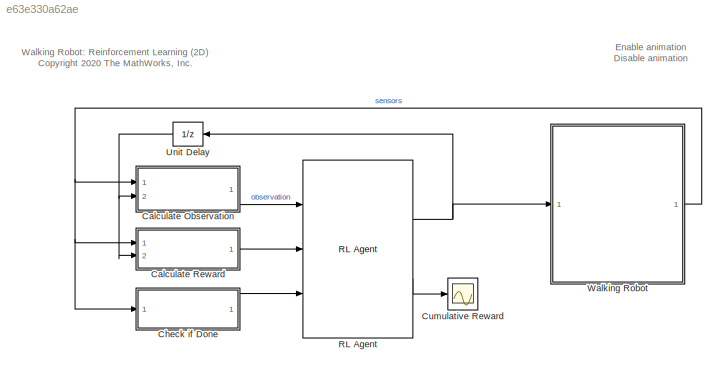
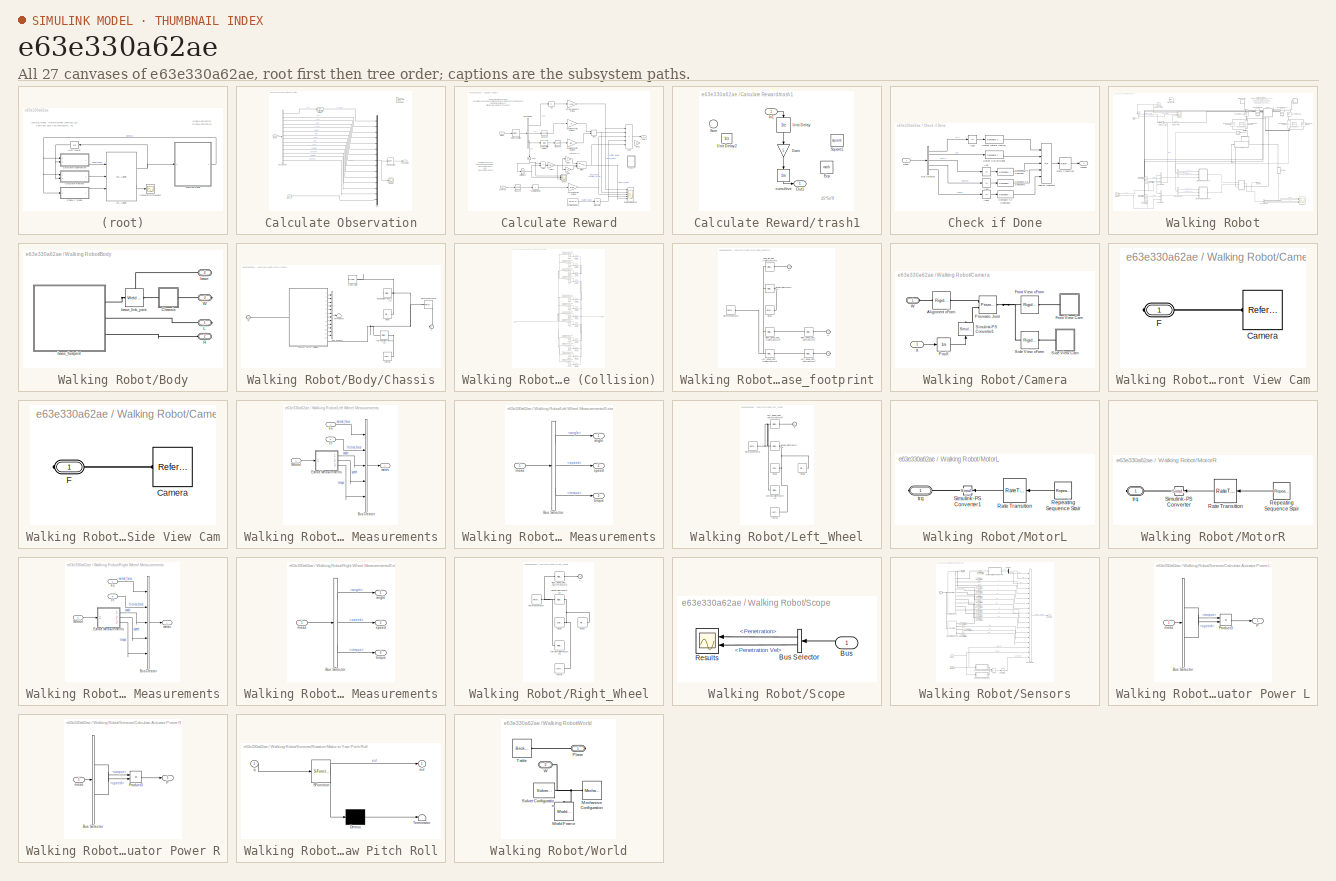
[diagram: thumbnail index - all 27 canvases of the model, root first then tree order]
MODEL slx_e63e330a62ae
KIND model
CONFIG AbsTol = auto
CONFIG EnableMultiTasking = on
CONFIG FixedStep = auto
CONFIG MaxStep = auto
CONFIG MinStep = auto
CONFIG RelTol = 1e-2
CONFIG SampleTimeConstraint = Unconstrained
CONFIG Solver = ode23t
CONFIG SolverName = ode23t
CONFIG StartTime = 0.0
CONFIG StopTime = 20
BLOCK [SubSystem] Calculate Observation
  Ports = [2, 1]
  RequestExecContextInheritance = off
BLOCK [BusSelector] Calculate Observation/Bus Selector
  OutputSignals = Z,VX,VY,VZ,yaw,pitch,roll,wx,wy,wz,measL.angle,measL.speed,measR.angle,measR.speed
  Ports = [1, 14]
BLOCK [Mux] Calculate Observation/Mux
  DisplayOption = bar
  Inputs = 15
  Ports = [15, 1]
BLOCK [RateTransition] Calculate Observation/Rate Transition
BLOCK [Gain] Calculate Observation/Scale Height
  Commented = on
  Gain = 1/0.05
BLOCK [Scope] Calculate Observation/Scope
  Floating = off
  NumInputPorts = 1
  Ports = [1]
  ScopeSpecificationString = Simulink.scopes.TimeScopeBlockCfg('CurrentConfiguration', extmgr.ConfigurationSet(extmgr.Configuration('Core','General UI',true),extmgr.Configuration('Core','Source UI',true),extmgr.Configuration('Sources','WiredSimulink',true,'DataLoggingVariableName','ScopeData1'),extmgr.Configuration('Visuals','Time Domain',true,'SerializedDisplays',{struct('MinYLimReal','-1','MaxYLimReal','1','YLabelReal','','...<+1885ch>
BLOCK [Bias] Calculate Observation/Subtract Initial Height
  Bias = -init_height
  SaturateOnIntegerOverflow = off
BLOCK [Inport] Calculate Observation/meas
BLOCK [Outport] Calculate Observation/observation
  VectorParamsAs1DForOutWhenUnconnected = off
BLOCK [Inport] Calculate Observation/prevAct
  Port = 2
BLOCK [SubSystem] Calculate Reward
  Ports = [2, 1]
  RequestExecContextInheritance = off
BLOCK [Abs] Calculate Reward/Abs
  SaturateOnIntegerOverflow = off
BLOCK [Abs] Calculate Reward/Abs1
  NameLocation = left
  SaturateOnIntegerOverflow = off
BLOCK [Sum] Calculate Reward/Add
  IconShape = rectangular
  Inputs = +-
  Ports = [2, 1]
BLOCK [Sum] Calculate Reward/Add1
  IconShape = rectangular
  Ports = [2, 1]
BLOCK [Sum] Calculate Reward/Add2
  IconShape = rectangular
  Inputs = +--++
  Ports = [5, 1]
BLOCK [BusSelector] Calculate Reward/Bus Selector
  OutputSignals = VX,Y,Z
  Ports = [1, 3]
BLOCK [Gain] Calculate Reward/Deviation Penalty Scaling Y
  Commented = on
  Gain = 3
BLOCK [Gain] Calculate Reward/Deviation Penalty Scaling Z
  Gain = 50
BLOCK [Constant] Calculate Reward/Duration Reward
  Value = 10*Ts/Tf
BLOCK [Gain] Calculate Reward/Forward Reward Scaling
  Gain = 0.05
BLOCK [Gain] Calculate Reward/Gain1
  Gain = 10
BLOCK [Gain] Calculate Reward/Gain2
  Gain = 5
BLOCK [Gain] Calculate Reward/Gain3
  Gain = 5e+1
BLOCK [Gain] Calculate Reward/Gain4
  Commented = on
  Gain = 10
BLOCK [Scope] Calculate Reward/Individual Rewards
  Floating = off
  NumInputPorts = 5
  Ports = [5]
  ScopeSpecificationString = Simulink.scopes.TimeScopeBlockCfg('CurrentConfiguration', extmgr.ConfigurationSet(extmgr.Configuration('Core','General UI',true),extmgr.Configuration('Core','Source UI',true),extmgr.Configuration('Sources','WiredSimulink',true,'DataLoggingVariableName','ScopeData1'),extmgr.Configuration('Visuals','Time Domain',true,'SerializedDisplays',{struct('MinYLimReal','-0.63415','MaxYLimReal','0.13673','YLab...<+1515ch>
BLOCK [Integrator] Calculate Reward/Integrator
  Ports = [1, 1]
BLOCK [RateTransition] Calculate Reward/Rate Transition
  OutPortSampleTime = Ts
BLOCK [Scope] Calculate Reward/Scope
  Commented = on
  Floating = off
  NumInputPorts = 3
  Ports = [3]
  ScopeSpecificationString = Simulink.scopes.TimeScopeBlockCfg('CurrentConfiguration', extmgr.ConfigurationSet(extmgr.Configuration('Core','General UI',true),extmgr.Configuration('Core','Source UI',true),extmgr.Configuration('Sources','WiredSimulink',true,'DataLoggingVariableName','ScopeData1'),extmgr.Configuration('Visuals','Time Domain',true,'SerializedDisplays',{struct('MinYLimReal','-0.31358','MaxYLimReal','0.15623','YLab...<+1525ch>
BLOCK [Math] Calculate Reward/Square2
  Operator = square
  Ports = [1, 1]
  SignedPower = on
BLOCK [Math] Calculate Reward/Square3
  Commented = on
  Operator = square
  Ports = [1, 1]
  SignedPower = on
BLOCK [Math] Calculate Reward/Square4
  Operator = square
  Ports = [1, 1]
  SignedPower = on
BLOCK [Bias] Calculate Reward/Subtract Initial Height
  Bias = -init_height
  SaturateOnIntegerOverflow = off
BLOCK [Sum] Calculate Reward/Sum of Elements
  IconShape = rectangular
  Inputs = +
  Ports = [1, 1]
BLOCK [Switch] Calculate Reward/Switch
  Criteria = u2 > Threshold
  InputSameDT = off
  SaturateOnIntegerOverflow = off
BLOCK [Gain] Calculate Reward/Torque Penalty Scaling
  Gain = 0.02
BLOCK [UnitDelay] Calculate Reward/Unit Delay1
  HasFrameUpgradeWarning = on
  InitialCondition = init_height
  SampleTime = Ts
BLOCK [Inport] Calculate Reward/meas
BLOCK [Inport] Calculate Reward/prevAct
  Port = 2
BLOCK [Outport] Calculate Reward/reward
  VectorParamsAs1DForOutWhenUnconnected = off
BLOCK [SubSystem] Calculate Reward/trash1
  Commented = on
  Ports = [1, 1]
  RequestExecContextInheritance = off
BLOCK [Math] Calculate Reward/trash1/Exp
  Commented = on
  NameLocation = left
  Ports = [1, 1]
BLOCK [Gain] Calculate Reward/trash1/Gain
  Commented = on
  Gain = 5
  NameLocation = left
BLOCK [Inport] Calculate Reward/trash1/In1
BLOCK [Outport] Calculate Reward/trash1/Out1
BLOCK [Math] Calculate Reward/trash1/Square1
  Commented = on
  NameLocation = left
  Operator = square
  Ports = [1, 1]
  SignedPower = on
BLOCK [Sum] Calculate Reward/trash1/Sum
  Commented = on
  Inputs = |++
  Ports = [2, 1]
BLOCK [UnitDelay] Calculate Reward/trash1/Unit Delay
  Commented = on
  HasFrameUpgradeWarning = on
  NameLocation = left
  SampleTime = -1
BLOCK [UnitDelay] Calculate Reward/trash1/Unit Delay2
  Commented = on
  HasFrameUpgradeWarning = on
  NameLocation = top
  SampleTime = -1
BLOCK [Integrator] Calculate Reward/trash1/cumultive
  Commented = on
  NameLocation = left
  Ports = [1, 1]
BLOCK [SubSystem] Check if Done
  Ports = [1, 1]
  RequestExecContextInheritance = off
BLOCK [Abs] Check if Done/Abs
  SaturateOnIntegerOverflow = off
BLOCK [Abs] Check if Done/Abs1
  SaturateOnIntegerOverflow = off
BLOCK [Abs] Check if Done/Abs2
  SaturateOnIntegerOverflow = off
BLOCK [Abs] Check if Done/Abs3
  Commented = on
  SaturateOnIntegerOverflow = off
BLOCK [BusSelector] Check if Done/Bus Selector
  OutputSignals = Y,Z,roll,pitch,yaw
  Ports = [1, 5]
BLOCK [Reference] Check if Done/Compare To Constant  REF=simulink/Logic and Bit
Operations/Compare
To Constant
  Ports = [1, 1]
  SourceBlock = simulink/Logic and Bit\nOperations/Compare\nTo Constant
  SourceProductBaseCode = SL
  SourceType = Compare To Constant
BLOCK [Reference] Check if Done/Compare To Constant1  REF=simulink/Logic and Bit
Operations/Compare
To Constant
  Ports = [1, 1]
  SourceBlock = simulink/Logic and Bit\nOperations/Compare\nTo Constant
  SourceProductBaseCode = SL
  SourceType = Compare To Constant
BLOCK [Reference] Check if Done/Compare To Constant2  REF=simulink/Logic and Bit
Operations/Compare
To Constant
  Ports = [1, 1]
  SourceBlock = simulink/Logic and Bit\nOperations/Compare\nTo Constant
  SourceProductBaseCode = SL
  SourceType = Compare To Constant
BLOCK [Reference] Check if Done/Detect Fallen Robot  REF=simulink/Logic and Bit
Operations/Compare
To Constant
  Ports = [1, 1]
  SourceBlock = simulink/Logic and Bit\nOperations/Compare\nTo Constant
  SourceProductBaseCode = SL
  SourceType = Compare To Constant
BLOCK [Reference] Check if Done/Detect Lateral Motion  REF=simulink/Logic and Bit
Operations/Compare
To Constant
  Commented = on
  Ports = [1, 1]
  SourceBlock = simulink/Logic and Bit\nOperations/Compare\nTo Constant
  SourceProductBaseCode = SL
  SourceType = Compare To Constant
BLOCK [Logic] Check if Done/Logical Operator
  AllPortsSameDT = off
  Inputs = 5
  Operator = OR
  OutDataTypeStr = boolean
  Ports = [5, 1]
BLOCK [RateTransition] Check if Done/Rate Transition
BLOCK [Outport] Check if Done/isdone
  VectorParamsAs1DForOutWhenUnconnected = off
BLOCK [Inport] Check if Done/meas
BLOCK [Scope] Cumulative Reward
  Floating = off
  NumInputPorts = 1
  Ports = [1]
  ScopeSpecificationString = Simulink.scopes.TimeScopeBlockCfg('CurrentConfiguration', extmgr.ConfigurationSet(extmgr.Configuration('Core','General UI',true),extmgr.Configuration('Core','Source UI',true),extmgr.Configuration('Sources','WiredSimulink',true),extmgr.Configuration('Visuals','Time Domain',true,'SerializedDisplays',{struct('MinYLimReal','-112.65012','MaxYLimReal','1013.85109','YLabelReal','','MinYLimMag',' 0.00000'...<+1402ch>
BLOCK [Reference] RL Agent  REF=rllib/RL Agent
  Ports = [3, 2]
  SourceBlock = rllib/RL Agent
  SourceProductBaseCode = RL
  SourceType = RL Agent
BLOCK [UnitDelay] Unit Delay
  HasFrameUpgradeWarning = on
  SampleTime = -1
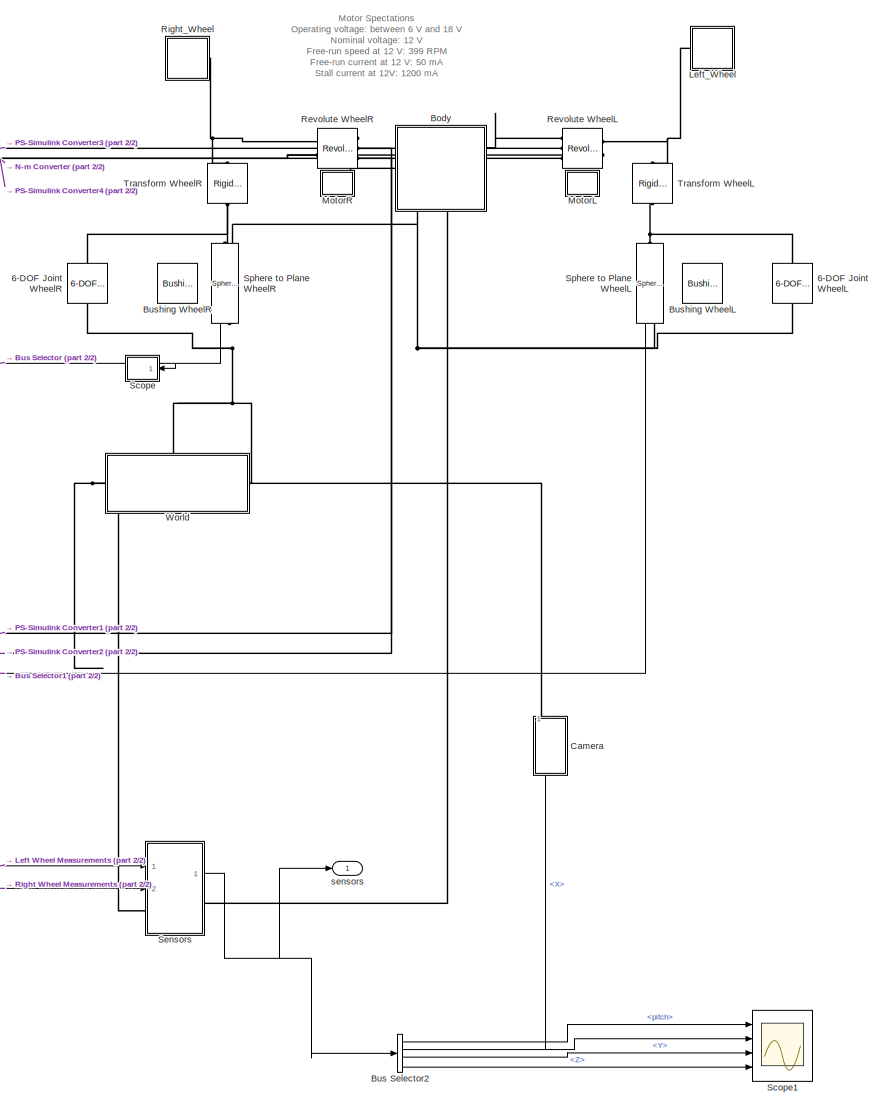
[diagram: Walking Robot - part 1/2, right side, full height]
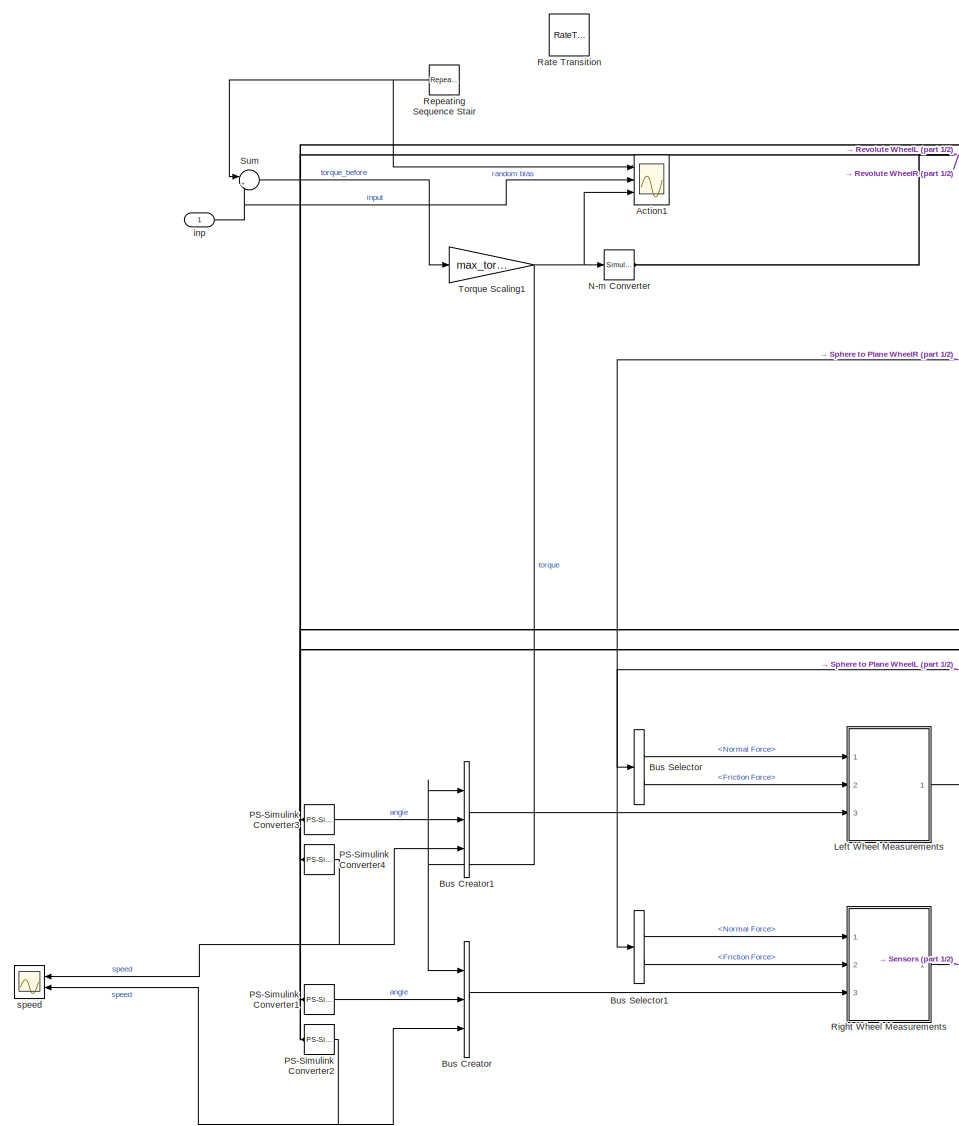
[diagram: Walking Robot - part 2/2, left side, full height]
BLOCK [SubSystem] Walking Robot
  Ports = [1, 1]
  RequestExecContextInheritance = off
BLOCK [Reference] Walking Robot/6-DOF Joint WheelL  REF=sm_lib/Joints/6-DOF Joint
  NameLocation = right
  Ports = [0, 0, 0, 0, 0, 1, 1]
  SourceBlock = sm_lib/Joints/6-DOF Joint
  SourceProductBaseCode = MS
  SourceType = 6-DOF Joint
BLOCK [Reference] Walking Robot/6-DOF Joint WheelR  REF=sm_lib/Joints/6-DOF Joint
  NameLocation = left
  Ports = [0, 0, 0, 0, 0, 1, 1]
  SourceBlock = sm_lib/Joints/6-DOF Joint
  SourceProductBaseCode = MS
  SourceType = 6-DOF Joint
BLOCK [Scope] Walking Robot/Action1
  Floating = off
  NumInputPorts = 3
  Ports = [3]
  ScopeSpecificationString = Simulink.scopes.TimeScopeBlockCfg('CurrentConfiguration', extmgr.ConfigurationSet(extmgr.Configuration('Core','General UI',true),extmgr.Configuration('Core','Source UI',true),extmgr.Configuration('Sources','WiredSimulink',true,'DataLoggingVariableName','ScopeData1'),extmgr.Configuration('Visuals','Time Domain',true,'SerializedDisplays',{struct('MinYLimReal','-0.78078','MaxYLimReal','0.98621','YLab...<+1686ch>
BLOCK [SubSystem] Walking Robot/Body
  PortSchema = {"entries":[{"content":{"sides":[{"content":{"connectorIds":["LConn1"]},"type":"ConnectorPlacement.EquallySpacedRectSide","uuid":"fa89fc61-4746-4874-a10e-0f1ff4eac7ad"},{"content":{"connectorIds":["RConn1"],"side":"RIGHT"},"type":"ConnectorPlacement.EquallySpacedRectSide","uuid":"79f4ddb8-3849-4594-b888-ec6795b585fc"},{"content":{"connectorIds":[],"side":"TOP"},"type":"ConnectorPlacement.EquallySp...<+408ch>
  Ports = [0, 0, 0, 0, 0, 1, 3]
  RequestExecContextInheritance = off
  Tag = CustomStyle
BLOCK [SubSystem] Walking Robot/Body/Chassis
  Ports = [0, 0, 0, 0, 0, 1, 1]
  RequestExecContextInheritance = off
BLOCK [Reference] Walking Robot/Body/Chassis/6-DOF Joint  REF=sm_lib/Joints/6-DOF Joint
  Ports = [0, 0, 0, 0, 0, 1, 1]
  SourceBlock = sm_lib/Joints/6-DOF Joint
  SourceProductBaseCode = MS
  SourceType = 6-DOF Joint
BLOCK [BusCreator] Walking Robot/Body/Chassis/Bus Creator
  DisplayOption = bar
  InheritFromInputs = on
  Inputs = 12
  Ports = [12, 1]
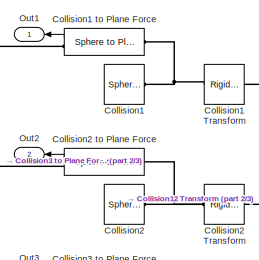
[diagram: Walking Robot/Body/Chassis/Contact Force (Collision) - part 1/3, top center region]
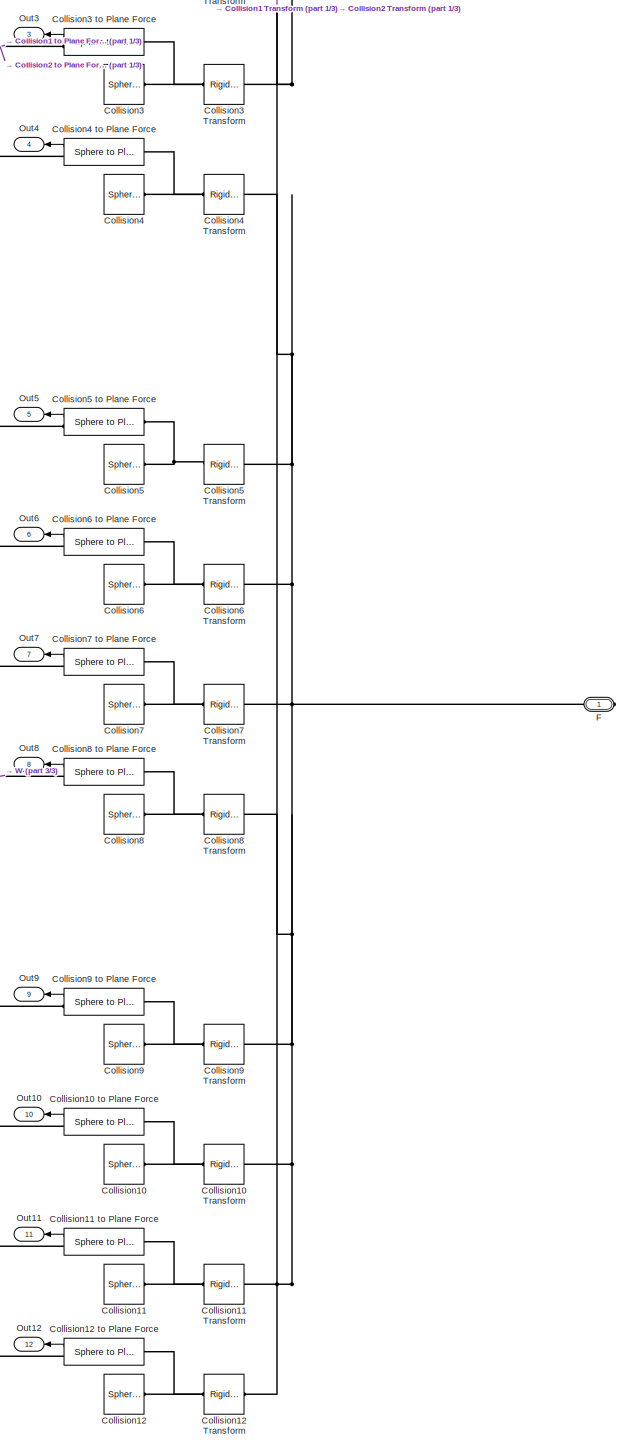
[diagram: Walking Robot/Body/Chassis/Contact Force (Collision) - part 2/3, right side, full height]
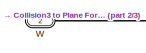
[diagram: Walking Robot/Body/Chassis/Contact Force (Collision) - part 3/3, middle left region]
BLOCK [SubSystem] Walking Robot/Body/Chassis/Contact Force (Collision)
  Ports = [0, 12, 0, 0, 0, 1, 1]
  RequestExecContextInheritance = off
BLOCK [Reference] Walking Robot/Body/Chassis/Contact Force (Collision)/Collision1  REF=sm_lib/Body Elements/Spherical Solid
  NameLocation = left
  Ports = [0, 0, 0, 0, 0, 0, 1]
  SourceBlock = sm_lib/Body Elements/Spherical Solid
  SourceProductBaseCode = MS
  SourceType = Spherical Solid
BLOCK [Reference] Walking Robot/Body/Chassis/Contact Force (Collision)/Collision1 Transform  REF=sm_lib/Frames and
Transforms/Rigid
Transform
  NameLocation = top
  Ports = [0, 0, 0, 0, 0, 1, 1]
  SourceBlock = sm_lib/Frames and\nTransforms/Rigid\nTransform
  SourceProductBaseCode = MS
  SourceType = Rigid\nTransform
BLOCK [Reference] Walking Robot/Body/Chassis/Contact Force (Collision)/Collision1 to Plane Force  REF=Contact_Forces_Lib/3D/Sphere to Plane Force
  NameLocation = left
  Ports = [0, 1, 0, 0, 0, 1, 1]
  SourceBlock = Contact_Forces_Lib/3D/Sphere to Plane Force
  SourceProductName = Simscape Multibody Contact Forces Library
  SourceType = Sphere to Plane Force
BLOCK [Reference] Walking Robot/Body/Chassis/Contact Force (Collision)/Collision10  REF=sm_lib/Body Elements/Spherical Solid
  NameLocation = left
  Ports = [0, 0, 0, 0, 0, 0, 1]
  SourceBlock = sm_lib/Body Elements/Spherical Solid
  SourceProductBaseCode = MS
  SourceType = Spherical Solid
BLOCK [Reference] Walking Robot/Body/Chassis/Contact Force (Collision)/Collision10 Transform  REF=sm_lib/Frames and
Transforms/Rigid
Transform
  NameLocation = top
  Ports = [0, 0, 0, 0, 0, 1, 1]
  SourceBlock = sm_lib/Frames and\nTransforms/Rigid\nTransform
  SourceProductBaseCode = MS
  SourceType = Rigid\nTransform
BLOCK [Reference] Walking Robot/Body/Chassis/Contact Force (Collision)/Collision10 to Plane Force  REF=Contact_Forces_Lib/3D/Sphere to Plane Force
  NameLocation = left
  Ports = [0, 1, 0, 0, 0, 1, 1]
  SourceBlock = Contact_Forces_Lib/3D/Sphere to Plane Force
  SourceProductName = Simscape Multibody Contact Forces Library
  SourceType = Sphere to Plane Force
BLOCK [Reference] Walking Robot/Body/Chassis/Contact Force (Collision)/Collision11  REF=sm_lib/Body Elements/Spherical Solid
  NameLocation = left
  Ports = [0, 0, 0, 0, 0, 0, 1]
  SourceBlock = sm_lib/Body Elements/Spherical Solid
  SourceProductBaseCode = MS
  SourceType = Spherical Solid
BLOCK [Reference] Walking Robot/Body/Chassis/Contact Force (Collision)/Collision11 Transform  REF=sm_lib/Frames and
Transforms/Rigid
Transform
  NameLocation = top
  Ports = [0, 0, 0, 0, 0, 1, 1]
  SourceBlock = sm_lib/Frames and\nTransforms/Rigid\nTransform
  SourceProductBaseCode = MS
  SourceType = Rigid\nTransform
BLOCK [Reference] Walking Robot/Body/Chassis/Contact Force (Collision)/Collision11 to Plane Force  REF=Contact_Forces_Lib/3D/Sphere to Plane Force
  NameLocation = left
  Ports = [0, 1, 0, 0, 0, 1, 1]
  SourceBlock = Contact_Forces_Lib/3D/Sphere to Plane Force
  SourceProductName = Simscape Multibody Contact Forces Library
  SourceType = Sphere to Plane Force
BLOCK [Reference] Walking Robot/Body/Chassis/Contact Force (Collision)/Collision12  REF=sm_lib/Body Elements/Spherical Solid
  NameLocation = left
  Ports = [0, 0, 0, 0, 0, 0, 1]
  SourceBlock = sm_lib/Body Elements/Spherical Solid
  SourceProductBaseCode = MS
  SourceType = Spherical Solid
BLOCK [Reference] Walking Robot/Body/Chassis/Contact Force (Collision)/Collision12 Transform  REF=sm_lib/Frames and
Transforms/Rigid
Transform
  NameLocation = top
  Ports = [0, 0, 0, 0, 0, 1, 1]
  SourceBlock = sm_lib/Frames and\nTransforms/Rigid\nTransform
  SourceProductBaseCode = MS
  SourceType = Rigid\nTransform
BLOCK [Reference] Walking Robot/Body/Chassis/Contact Force (Collision)/Collision12 to Plane Force  REF=Contact_Forces_Lib/3D/Sphere to Plane Force
  NameLocation = left
  Ports = [0, 1, 0, 0, 0, 1, 1]
  SourceBlock = Contact_Forces_Lib/3D/Sphere to Plane Force
  SourceProductName = Simscape Multibody Contact Forces Library
  SourceType = Sphere to Plane Force
BLOCK [Reference] Walking Robot/Body/Chassis/Contact Force (Collision)/Collision2  REF=sm_lib/Body Elements/Spherical Solid
  NameLocation = left
  Ports = [0, 0, 0, 0, 0, 0, 1]
  SourceBlock = sm_lib/Body Elements/Spherical Solid
  SourceProductBaseCode = MS
  SourceType = Spherical Solid
BLOCK [Reference] Walking Robot/Body/Chassis/Contact Force (Collision)/Collision2 Transform  REF=sm_lib/Frames and
Transforms/Rigid
Transform
  NameLocation = top
  Ports = [0, 0, 0, 0, 0, 1, 1]
  SourceBlock = sm_lib/Frames and\nTransforms/Rigid\nTransform
  SourceProductBaseCode = MS
  SourceType = Rigid\nTransform
BLOCK [Reference] Walking Robot/Body/Chassis/Contact Force (Collision)/Collision2 to Plane Force  REF=Contact_Forces_Lib/3D/Sphere to Plane Force
  NameLocation = left
  Ports = [0, 1, 0, 0, 0, 1, 1]
  SourceBlock = Contact_Forces_Lib/3D/Sphere to Plane Force
  SourceProductName = Simscape Multibody Contact Forces Library
  SourceType = Sphere to Plane Force
BLOCK [Reference] Walking Robot/Body/Chassis/Contact Force (Collision)/Collision3  REF=sm_lib/Body Elements/Spherical Solid
  NameLocation = left
  Ports = [0, 0, 0, 0, 0, 0, 1]
  SourceBlock = sm_lib/Body Elements/Spherical Solid
  SourceProductBaseCode = MS
  SourceType = Spherical Solid
BLOCK [Reference] Walking Robot/Body/Chassis/Contact Force (Collision)/Collision3 Transform  REF=sm_lib/Frames and
Transforms/Rigid
Transform
  NameLocation = top
  Ports = [0, 0, 0, 0, 0, 1, 1]
  SourceBlock = sm_lib/Frames and\nTransforms/Rigid\nTransform
  SourceProductBaseCode = MS
  SourceType = Rigid\nTransform
BLOCK [Reference] Walking Robot/Body/Chassis/Contact Force (Collision)/Collision3 to Plane Force  REF=Contact_Forces_Lib/3D/Sphere to Plane Force
  NameLocation = left
  Ports = [0, 1, 0, 0, 0, 1, 1]
  SourceBlock = Contact_Forces_Lib/3D/Sphere to Plane Force
  SourceProductName = Simscape Multibody Contact Forces Library
  SourceType = Sphere to Plane Force
BLOCK [Reference] Walking Robot/Body/Chassis/Contact Force (Collision)/Collision4  REF=sm_lib/Body Elements/Spherical Solid
  NameLocation = left
  Ports = [0, 0, 0, 0, 0, 0, 1]
  SourceBlock = sm_lib/Body Elements/Spherical Solid
  SourceProductBaseCode = MS
  SourceType = Spherical Solid
BLOCK [Reference] Walking Robot/Body/Chassis/Contact Force (Collision)/Collision4 Transform  REF=sm_lib/Frames and
Transforms/Rigid
Transform
  NameLocation = top
  Ports = [0, 0, 0, 0, 0, 1, 1]
  SourceBlock = sm_lib/Frames and\nTransforms/Rigid\nTransform
  SourceProductBaseCode = MS
  SourceType = Rigid\nTransform
BLOCK [Reference] Walking Robot/Body/Chassis/Contact Force (Collision)/Collision4 to Plane Force  REF=Contact_Forces_Lib/3D/Sphere to Plane Force
  NameLocation = left
  Ports = [0, 1, 0, 0, 0, 1, 1]
  SourceBlock = Contact_Forces_Lib/3D/Sphere to Plane Force
  SourceProductName = Simscape Multibody Contact Forces Library
  SourceType = Sphere to Plane Force
BLOCK [Reference] Walking Robot/Body/Chassis/Contact Force (Collision)/Collision5  REF=sm_lib/Body Elements/Spherical Solid
  NameLocation = left
  Ports = [0, 0, 0, 0, 0, 0, 1]
  SourceBlock = sm_lib/Body Elements/Spherical Solid
  SourceProductBaseCode = MS
  SourceType = Spherical Solid
BLOCK [Reference] Walking Robot/Body/Chassis/Contact Force (Collision)/Collision5 Transform  REF=sm_lib/Frames and
Transforms/Rigid
Transform
  NameLocation = top
  Ports = [0, 0, 0, 0, 0, 1, 1]
  SourceBlock = sm_lib/Frames and\nTransforms/Rigid\nTransform
  SourceProductBaseCode = MS
  SourceType = Rigid\nTransform
BLOCK [Reference] Walking Robot/Body/Chassis/Contact Force (Collision)/Collision5 to Plane Force  REF=Contact_Forces_Lib/3D/Sphere to Plane Force
  NameLocation = left
  Ports = [0, 1, 0, 0, 0, 1, 1]
  SourceBlock = Contact_Forces_Lib/3D/Sphere to Plane Force
  SourceProductName = Simscape Multibody Contact Forces Library
  SourceType = Sphere to Plane Force
BLOCK [Reference] Walking Robot/Body/Chassis/Contact Force (Collision)/Collision6  REF=sm_lib/Body Elements/Spherical Solid
  NameLocation = left
  Ports = [0, 0, 0, 0, 0, 0, 1]
  SourceBlock = sm_lib/Body Elements/Spherical Solid
  SourceProductBaseCode = MS
  SourceType = Spherical Solid
BLOCK [Reference] Walking Robot/Body/Chassis/Contact Force (Collision)/Collision6 Transform  REF=sm_lib/Frames and
Transforms/Rigid
Transform
  NameLocation = top
  Ports = [0, 0, 0, 0, 0, 1, 1]
  SourceBlock = sm_lib/Frames and\nTransforms/Rigid\nTransform
  SourceProductBaseCode = MS
  SourceType = Rigid\nTransform
BLOCK [Reference] Walking Robot/Body/Chassis/Contact Force (Collision)/Collision6 to Plane Force  REF=Contact_Forces_Lib/3D/Sphere to Plane Force
  NameLocation = left
  Ports = [0, 1, 0, 0, 0, 1, 1]
  SourceBlock = Contact_Forces_Lib/3D/Sphere to Plane Force
  SourceProductName = Simscape Multibody Contact Forces Library
  SourceType = Sphere to Plane Force
BLOCK [Reference] Walking Robot/Body/Chassis/Contact Force (Collision)/Collision7  REF=sm_lib/Body Elements/Spherical Solid
  NameLocation = left
  Ports = [0, 0, 0, 0, 0, 0, 1]
  SourceBlock = sm_lib/Body Elements/Spherical Solid
  SourceProductBaseCode = MS
  SourceType = Spherical Solid
BLOCK [Reference] Walking Robot/Body/Chassis/Contact Force (Collision)/Collision7 Transform  REF=sm_lib/Frames and
Transforms/Rigid
Transform
  NameLocation = top
  Ports = [0, 0, 0, 0, 0, 1, 1]
  SourceBlock = sm_lib/Frames and\nTransforms/Rigid\nTransform
  SourceProductBaseCode = MS
  SourceType = Rigid\nTransform
BLOCK [Reference] Walking Robot/Body/Chassis/Contact Force (Collision)/Collision7 to Plane Force  REF=Contact_Forces_Lib/3D/Sphere to Plane Force
  NameLocation = left
  Ports = [0, 1, 0, 0, 0, 1, 1]
  SourceBlock = Contact_Forces_Lib/3D/Sphere to Plane Force
  SourceProductName = Simscape Multibody Contact Forces Library
  SourceType = Sphere to Plane Force
BLOCK [Reference] Walking Robot/Body/Chassis/Contact Force (Collision)/Collision8  REF=sm_lib/Body Elements/Spherical Solid
  NameLocation = left
  Ports = [0, 0, 0, 0, 0, 0, 1]
  SourceBlock = sm_lib/Body Elements/Spherical Solid
  SourceProductBaseCode = MS
  SourceType = Spherical Solid
BLOCK [Reference] Walking Robot/Body/Chassis/Contact Force (Collision)/Collision8 Transform  REF=sm_lib/Frames and
Transforms/Rigid
Transform
  NameLocation = top
  Ports = [0, 0, 0, 0, 0, 1, 1]
  SourceBlock = sm_lib/Frames and\nTransforms/Rigid\nTransform
  SourceProductBaseCode = MS
  SourceType = Rigid\nTransform
BLOCK [Reference] Walking Robot/Body/Chassis/Contact Force (Collision)/Collision8 to Plane Force  REF=Contact_Forces_Lib/3D/Sphere to Plane Force
  NameLocation = left
  Ports = [0, 1, 0, 0, 0, 1, 1]
  SourceBlock = Contact_Forces_Lib/3D/Sphere to Plane Force
  SourceProductName = Simscape Multibody Contact Forces Library
  SourceType = Sphere to Plane Force
BLOCK [Reference] Walking Robot/Body/Chassis/Contact Force (Collision)/Collision9  REF=sm_lib/Body Elements/Spherical Solid
  NameLocation = left
  Ports = [0, 0, 0, 0, 0, 0, 1]
  SourceBlock = sm_lib/Body Elements/Spherical Solid
  SourceProductBaseCode = MS
  SourceType = Spherical Solid
BLOCK [Reference] Walking Robot/Body/Chassis/Contact Force (Collision)/Collision9 Transform  REF=sm_lib/Frames and
Transforms/Rigid
Transform
  NameLocation = top
  Ports = [0, 0, 0, 0, 0, 1, 1]
  SourceBlock = sm_lib/Frames and\nTransforms/Rigid\nTransform
  SourceProductBaseCode = MS
  SourceType = Rigid\nTransform
BLOCK [Reference] Walking Robot/Body/Chassis/Contact Force (Collision)/Collision9 to Plane Force  REF=Contact_Forces_Lib/3D/Sphere to Plane Force
  NameLocation = left
  Ports = [0, 1, 0, 0, 0, 1, 1]
  SourceBlock = Contact_Forces_Lib/3D/Sphere to Plane Force
  SourceProductName = Simscape Multibody Contact Forces Library
  SourceType = Sphere to Plane Force
BLOCK [PMIOPort] Walking Robot/Body/Chassis/Contact Force (Collision)/F
  Side = Right
BLOCK [Outport] Walking Robot/Body/Chassis/Contact Force (Collision)/Out1
BLOCK [Outport] Walking Robot/Body/Chassis/Contact Force (Collision)/Out10
  Port = 10
BLOCK [Outport] Walking Robot/Body/Chassis/Contact Force (Collision)/Out11
  Port = 11
BLOCK [Outport] Walking Robot/Body/Chassis/Contact Force (Collision)/Out12
  Port = 12
BLOCK [Outport] Walking Robot/Body/Chassis/Contact Force (Collision)/Out2
  Port = 2
BLOCK [Outport] Walking Robot/Body/Chassis/Contact Force (Collision)/Out3
  Port = 3
BLOCK [Outport] Walking Robot/Body/Chassis/Contact Force (Collision)/Out4
  Port = 4
BLOCK [Outport] Walking Robot/Body/Chassis/Contact Force (Collision)/Out5
  Port = 5
BLOCK [Outport] Walking Robot/Body/Chassis/Contact Force (Collision)/Out6
  Port = 6
BLOCK [Outport] Walking Robot/Body/Chassis/Contact Force (Collision)/Out7
  Port = 7
BLOCK [Outport] Walking Robot/Body/Chassis/Contact Force (Collision)/Out8
  Port = 8
BLOCK [Outport] Walking Robot/Body/Chassis/Contact Force (Collision)/Out9
  Port = 9
BLOCK [PMIOPort] Walking Robot/Body/Chassis/Contact Force (Collision)/W
  Port = 2
  Side = Left
BLOCK [PMIOPort] Walking Robot/Body/Chassis/F
  NameLocation = top
  Side = Left
BLOCK [Reference] Walking Robot/Body/Chassis/Inertia  REF=sm_lib/Body Elements/Inertia
  Ports = [0, 0, 0, 0, 0, 0, 1]
  SourceBlock = sm_lib/Body Elements/Inertia
  SourceProductBaseCode = MS
  SourceType = Inertia
BLOCK [Reference] Walking Robot/Body/Chassis/InertiaOriginTransform  REF=sm_lib/Frames and
Transforms/Rigid
Transform
  Ports = [0, 0, 0, 0, 0, 1, 1]
  SourceBlock = sm_lib/Frames and\nTransforms/Rigid\nTransform
  SourceProductBaseCode = MS
  SourceType = Rigid\nTransform
BLOCK [Reference] Walking Robot/Body/Chassis/ReferenceFrame  REF=sm_lib/Frames and
Transforms/Reference
Frame
  NameLocation = top
  Ports = [0, 0, 0, 0, 0, 0, 1]
  SourceBlock = sm_lib/Frames and\nTransforms/Reference\nFrame
  SourceProductBaseCode = MS
  SourceType = Reference\nFrame
BLOCK [Terminator] Walking Robot/Body/Chassis/Terminator
BLOCK [Reference] Walking Robot/Body/Chassis/Visual  REF=sm_lib/Body Elements/File Solid
  Ports = [0, 0, 0, 0, 0, 0, 1]
  SourceBlock = sm_lib/Body Elements/File Solid
  SourceProductBaseCode = MS
  SourceType = File Solid
BLOCK [Reference] Walking Robot/Body/Chassis/VisualOriginTransform  REF=sm_lib/Frames and
Transforms/Rigid
Transform
  Ports = [0, 0, 0, 0, 0, 1, 1]
  SourceBlock = sm_lib/Frames and\nTransforms/Rigid\nTransform
  SourceProductBaseCode = MS
  SourceType = Rigid\nTransform
BLOCK [PMIOPort] Walking Robot/Body/Chassis/W
  Port = 2
  Side = Right
BLOCK [PMIOPort] Walking Robot/Body/L
  NameLocation = top
  Side = Right
BLOCK [PMIOPort] Walking Robot/Body/R
  Port = 2
  Side = Left
BLOCK [PMIOPort] Walking Robot/Body/W
  Port = 3
  Side = Right
BLOCK [PMIOPort] Walking Robot/Body/base
  Port = 4
  Side = Right
BLOCK [SubSystem] Walking Robot/Body/base_footprint
  Ports = [0, 0, 0, 0, 0, 0, 3]
  RequestExecContextInheritance = off
BLOCK [PMIOPort] Walking Robot/Body/base_footprint/C
  Side = Right
BLOCK [PMIOPort] Walking Robot/Body/base_footprint/L
  Port = 3
  Side = Right
BLOCK [Reference] Walking Robot/Body/base_footprint/Left_wheel_Joint_AxisTransform  REF=sm_lib/Frames and
Transforms/Rigid
Transform
  Ports = [0, 0, 0, 0, 0, 1, 1]
  SourceBlock = sm_lib/Frames and\nTransforms/Rigid\nTransform
  SourceProductBaseCode = MS
  SourceType = Rigid\nTransform
BLOCK [Reference] Walking Robot/Body/base_footprint/Left_wheel_Joint_OriginTransform  REF=sm_lib/Frames and
Transforms/Rigid
Transform
  Ports = [0, 0, 0, 0, 0, 1, 1]
  SourceBlock = sm_lib/Frames and\nTransforms/Rigid\nTransform
  SourceProductBaseCode = MS
  SourceType = Rigid\nTransform
BLOCK [PMIOPort] Walking Robot/Body/base_footprint/R
  Port = 2
  Side = Right
BLOCK [Reference] Walking Robot/Body/base_footprint/ReferenceFrame  REF=sm_lib/Frames and
Transforms/Reference
Frame
  Ports = [0, 0, 0, 0, 0, 0, 1]
  SourceBlock = sm_lib/Frames and\nTransforms/Reference\nFrame
  SourceProductBaseCode = MS
  SourceType = Reference\nFrame
BLOCK [Reference] Walking Robot/Body/base_footprint/Right_wheel_Joint_AxisTransform  REF=sm_lib/Frames and
Transforms/Rigid
Transform
  Ports = [0, 0, 0, 0, 0, 1, 1]
  SourceBlock = sm_lib/Frames and\nTransforms/Rigid\nTransform
  SourceProductBaseCode = MS
  SourceType = Rigid\nTransform
BLOCK [Reference] Walking Robot/Body/base_footprint/Right_wheel_Joint_OriginTransform  REF=sm_lib/Frames and
Transforms/Rigid
Transform
  Ports = [0, 0, 0, 0, 0, 1, 1]
  SourceBlock = sm_lib/Frames and\nTransforms/Rigid\nTransform
  SourceProductBaseCode = MS
  SourceType = Rigid\nTransform
BLOCK [Reference] Walking Robot/Body/base_footprint/Visual  REF=sm_lib/Body Elements/Brick Solid
  Ports = [0, 0, 0, 0, 0, 0, 1]
  SourceBlock = sm_lib/Body Elements/Brick Solid
  SourceProductBaseCode = MS
  SourceType = Brick Solid
BLOCK [Reference] Walking Robot/Body/base_footprint/VisualOriginTransform  REF=sm_lib/Frames and
Transforms/Rigid
Transform
  Ports = [0, 0, 0, 0, 0, 1, 1]
  SourceBlock = sm_lib/Frames and\nTransforms/Rigid\nTransform
  SourceProductBaseCode = MS
  SourceType = Rigid\nTransform
BLOCK [Reference] Walking Robot/Body/base_footprint/base_link_joint_OriginTransform  REF=sm_lib/Frames and
Transforms/Rigid
Transform
  Ports = [0, 0, 0, 0, 0, 1, 1]
  SourceBlock = sm_lib/Frames and\nTransforms/Rigid\nTransform
  SourceProductBaseCode = MS
  SourceType = Rigid\nTransform
BLOCK [Reference] Walking Robot/Body/base_link_joint  REF=sm_lib/Joints/Weld Joint
  Ports = [0, 0, 0, 0, 0, 1, 1]
  SourceBlock = sm_lib/Joints/Weld Joint
  SourceProductBaseCode = MS
  SourceType = Weld Joint
BLOCK [BusCreator] Walking Robot/Bus Creator
  DisplayOption = bar
  InheritFromInputs = on
  Inputs = 3
  Ports = [3, 1]
BLOCK [BusCreator] Walking Robot/Bus Creator1
  DisplayOption = bar
  InheritFromInputs = on
  Inputs = 3
  Ports = [3, 1]
BLOCK [BusSelector] Walking Robot/Bus Selector
  OutputSignals = Normal Force,Friction Force
  Ports = [1, 2]
BLOCK [BusSelector] Walking Robot/Bus Selector1
  OutputSignals = Normal Force,Friction Force
  Ports = [1, 2]
BLOCK [BusSelector] Walking Robot/Bus Selector2
  OutputSignals = pitch,X,Y,Z
  Ports = [1, 4]
BLOCK [Reference] Walking Robot/Bushing WheelL  REF=sm_lib/Joints/Bushing Joint
  Commented = on
  NameLocation = right
  Ports = [0, 0, 0, 0, 0, 1, 1]
  SourceBlock = sm_lib/Joints/Bushing Joint
  SourceProductBaseCode = MS
  SourceType = Bushing Joint
BLOCK [Reference] Walking Robot/Bushing WheelR  REF=sm_lib/Joints/Bushing Joint
  Commented = on
  NameLocation = left
  Ports = [0, 0, 0, 0, 0, 1, 1]
  SourceBlock = sm_lib/Joints/Bushing Joint
  SourceProductBaseCode = MS
  SourceType = Bushing Joint
BLOCK [SubSystem] Walking Robot/Camera
  NameLocation = left
  PortSchema = {"entries":[{"content":{"sides":[{"content":{"connectorIds":["LConn1"]},"type":"ConnectorPlacement.EquallySpacedRectSide","uuid":"5dd6ba45-4949-437e-8c5e-43dcd5e686b4"},{"content":{"connectorIds":["In1"],"side":"RIGHT"},"type":"ConnectorPlacement.EquallySpacedRectSide","uuid":"c228f6bd-c24f-413c-af3b-a3573d3a4749"},{"content":{"connectorIds":[],"side":"TOP"},"type":"ConnectorPlacement.EquallySpace...<+244ch>
  Ports = [1, 0, 0, 0, 0, 1]
  RequestExecContextInheritance = off
BLOCK [Reference] Walking Robot/Camera/Alignment xForm  REF=sm_lib/Frames and
Transforms/Rigid
Transform
  Ports = [0, 0, 0, 0, 0, 1, 1]
  SourceBlock = sm_lib/Frames and\nTransforms/Rigid\nTransform
  SourceProductBaseCode = MS
  SourceType = Rigid\nTransform
BLOCK [SubSystem] Walking Robot/Camera/Front View Cam
  Ports = [0, 0, 0, 0, 0, 0, 1]
  RequestExecContextInheritance = off
BLOCK [Reference] Walking Robot/Camera/Front View Cam/Camera  REF=sm_lib/Frames and
Transforms/Reference
Frame
  Ports = [0, 0, 0, 0, 0, 0, 1]
  SourceBlock = sm_lib/Frames and\nTransforms/Reference\nFrame
  SourceProductBaseCode = MS
  SourceType = Reference\nFrame
BLOCK [PMIOPort] Walking Robot/Camera/Front View Cam/F
  Side = Right
BLOCK [Reference] Walking Robot/Camera/Front View xForm  REF=sm_lib/Frames and
Transforms/Rigid
Transform
  Ports = [0, 0, 0, 0, 0, 1, 1]
  SourceBlock = sm_lib/Frames and\nTransforms/Rigid\nTransform
  SourceProductBaseCode = MS
  SourceType = Rigid\nTransform
BLOCK [Integrator] Walking Robot/Camera/PosX
  InitialCondition = 0.3
  Ports = [1, 1]
BLOCK [Reference] Walking Robot/Camera/Prismatic Joint  REF=sm_lib/Joints/Prismatic
Joint
  Ports = [0, 0, 0, 0, 0, 2, 1]
  SourceBlock = sm_lib/Joints/Prismatic\nJoint
  SourceProductBaseCode = MS
  SourceType = Prismatic\nJoint
BLOCK [SubSystem] Walking Robot/Camera/Side View Cam
  Ports = [0, 0, 0, 0, 0, 0, 1]
  RequestExecContextInheritance = off
BLOCK [Reference] Walking Robot/Camera/Side View Cam/Camera  REF=sm_lib/Frames and
Transforms/Reference
Frame
  Ports = [0, 0, 0, 0, 0, 0, 1]
  SourceBlock = sm_lib/Frames and\nTransforms/Reference\nFrame
  SourceProductBaseCode = MS
  SourceType = Reference\nFrame
BLOCK [PMIOPort] Walking Robot/Camera/Side View Cam/F
  Side = Right
BLOCK [Reference] Walking Robot/Camera/Side View xForm  REF=sm_lib/Frames and
Transforms/Rigid
Transform
  Ports = [0, 0, 0, 0, 0, 1, 1]
  SourceBlock = sm_lib/Frames and\nTransforms/Rigid\nTransform
  SourceProductBaseCode = MS
  SourceType = Rigid\nTransform
BLOCK [Reference] Walking Robot/Camera/Simulink-PS Converter1  REF=nesl_utility/Simulink-PS
Converter
  NameLocation = right
  Ports = [1, 0, 0, 0, 0, 0, 1]
  SourceBlock = nesl_utility/Simulink-PS\nConverter
  SourceProductBaseCode = SS
  SourceType = Simulink-PS\nConverter
BLOCK [PMIOPort] Walking Robot/Camera/W
  Side = Left
BLOCK [Inport] Walking Robot/Camera/X
BLOCK [SubSystem] Walking Robot/Left Wheel Measurements
  AncestorBlock = walkingRobotUtils/Package \nMeasurements 2D
  Ports = [3, 1]
  RequestExecContextInheritance = off
BLOCK [BusCreator] Walking Robot/Left Wheel Measurements/Bus Creator
  DisplayOption = bar
  InheritFromInputs = on
  Inputs = 5
  Ports = [5, 1]
BLOCK [SubSystem] Walking Robot/Left Wheel Measurements/Extract Measurements
  Ports = [1, 3]
  RequestExecContextInheritance = off
BLOCK [BusSelector] Walking Robot/Left Wheel Measurements/Extract Measurements/Bus Selector
  OutputSignals = angle,speed,torque
  Ports = [1, 3]
BLOCK [Outport] Walking Robot/Left Wheel Measurements/Extract Measurements/angle
  VectorParamsAs1DForOutWhenUnconnected = off
BLOCK [Inport] Walking Robot/Left Wheel Measurements/Extract Measurements/meas
BLOCK [Outport] Walking Robot/Left Wheel Measurements/Extract Measurements/speed
  Port = 2
  VectorParamsAs1DForOutWhenUnconnected = off
BLOCK [Outport] Walking Robot/Left Wheel Measurements/Extract Measurements/torque
  Port = 3
  VectorParamsAs1DForOutWhenUnconnected = off
BLOCK [Inport] Walking Robot/Left Wheel Measurements/Ff
  Port = 2
BLOCK [Inport] Walking Robot/Left Wheel Measurements/Fn
BLOCK [Inport] Walking Robot/Left Wheel Measurements/Wheel
  Port = 3
BLOCK [Outport] Walking Robot/Left Wheel Measurements/meas
  VectorParamsAs1DForOutWhenUnconnected = off
BLOCK [SubSystem] Walking Robot/Left_Wheel
  Ports = [0, 0, 0, 0, 0, 1]
  RequestExecContextInheritance = off
BLOCK [PMIOPort] Walking Robot/Left_Wheel/F
  Side = Left
BLOCK [Reference] Walking Robot/Left_Wheel/Inertia  REF=sm_lib/Body Elements/Inertia
  Ports = [0, 0, 0, 0, 0, 0, 1]
  SourceBlock = sm_lib/Body Elements/Inertia
  SourceProductBaseCode = MS
  SourceType = Inertia
BLOCK [Reference] Walking Robot/Left_Wheel/InertiaOriginTransform  REF=sm_lib/Frames and
Transforms/Rigid
Transform
  Commented = on
  Ports = [0, 0, 0, 0, 0, 1, 1]
  SourceBlock = sm_lib/Frames and\nTransforms/Rigid\nTransform
  SourceProductBaseCode = MS
  SourceType = Rigid\nTransform
BLOCK [Reference] Walking Robot/Left_Wheel/Left_wheel_Joint_AxisInvTransform  REF=sm_lib/Frames and
Transforms/Rigid
Transform
  Ports = [0, 0, 0, 0, 0, 1, 1]
  SourceBlock = sm_lib/Frames and\nTransforms/Rigid\nTransform
  SourceProductBaseCode = MS
  SourceType = Rigid\nTransform
BLOCK [Reference] Walking Robot/Left_Wheel/ReferenceFrame  REF=sm_lib/Frames and
Transforms/Reference
Frame
  Ports = [0, 0, 0, 0, 0, 0, 1]
  SourceBlock = sm_lib/Frames and\nTransforms/Reference\nFrame
  SourceProductBaseCode = MS
  SourceType = Reference\nFrame
BLOCK [Reference] Walking Robot/Left_Wheel/Visual  REF=sm_lib/Body Elements/Cylindrical Solid
  Ports = [0, 0, 0, 0, 0, 0, 1]
  SourceBlock = sm_lib/Body Elements/Cylindrical Solid
  SourceProductBaseCode = MS
  SourceType = Cylindrical Solid
BLOCK [Reference] Walking Robot/Left_Wheel/Visual1  REF=sm_lib/Body Elements/File Solid
  Commented = on
  Ports = [0, 0, 0, 0, 0, 0, 1]
  SourceBlock = sm_lib/Body Elements/File Solid
  SourceProductBaseCode = MS
  SourceType = File Solid
BLOCK [Reference] Walking Robot/Left_Wheel/VisualOriginTransform  REF=sm_lib/Frames and
Transforms/Rigid
Transform
  Ports = [0, 0, 0, 0, 0, 1, 1]
  SourceBlock = sm_lib/Frames and\nTransforms/Rigid\nTransform
  SourceProductBaseCode = MS
  SourceType = Rigid\nTransform
BLOCK [SubSystem] Walking Robot/MotorL
  Commented = on
  Ports = [0, 0, 0, 0, 0, 0, 1]
  RequestExecContextInheritance = off
BLOCK [RateTransition] Walking Robot/MotorL/Rate Transition
BLOCK [Reference] Walking Robot/MotorL/Repeating Sequence Stair  REF=simulink/Sources/Repeating
Sequence
Stair
  Ports = [0, 1]
  SourceBlock = simulink/Sources/Repeating\nSequence\nStair
  SourceProductBaseCode = SL
  SourceType = Repeating Sequence Stair
BLOCK [Reference] Walking Robot/MotorL/Simulink-PS Converter1  REF=nesl_utility/Simulink-PS
Converter
  Ports = [1, 0, 0, 0, 0, 0, 1]
  SourceBlock = nesl_utility/Simulink-PS\nConverter
  SourceProductBaseCode = SS
  SourceType = Simulink-PS\nConverter
BLOCK [PMIOPort] Walking Robot/MotorL/trq
  NameLocation = top
  Side = Right
BLOCK [SubSystem] Walking Robot/MotorR
  Commented = on
  Ports = [0, 0, 0, 0, 0, 0, 1]
  RequestExecContextInheritance = off
BLOCK [RateTransition] Walking Robot/MotorR/Rate Transition
BLOCK [Reference] Walking Robot/MotorR/Repeating Sequence Stair  REF=simulink/Sources/Repeating
Sequence
Stair
  Ports = [0, 1]
  SourceBlock = simulink/Sources/Repeating\nSequence\nStair
  SourceProductBaseCode = SL
  SourceType = Repeating Sequence Stair
BLOCK [Reference] Walking Robot/MotorR/Simulink-PS Converter  REF=nesl_utility/Simulink-PS
Converter
  Ports = [1, 0, 0, 0, 0, 0, 1]
  SourceBlock = nesl_utility/Simulink-PS\nConverter
  SourceProductBaseCode = SS
  SourceType = Simulink-PS\nConverter
BLOCK [PMIOPort] Walking Robot/MotorR/trq
  NameLocation = top
  Side = Right
BLOCK [Reference] Walking Robot/N-m Converter  REF=nesl_utility/Simulink-PS
Converter
  Ports = [1, 0, 0, 0, 0, 0, 1]
  SourceBlock = nesl_utility/Simulink-PS\nConverter
  SourceProductBaseCode = MT,SS
  SourceType = Simulink-PS\nConverter
BLOCK [Reference] Walking Robot/PS-Simulink Converter1  REF=nesl_utility/PS-Simulink
Converter
  Ports = [0, 1, 0, 0, 0, 1]
  SourceBlock = nesl_utility/PS-Simulink\nConverter
  SourceProductBaseCode = MT,SS
  SourceType = PS-Simulink\nConverter
BLOCK [Reference] Walking Robot/PS-Simulink Converter2  REF=nesl_utility/PS-Simulink
Converter
  Ports = [0, 1, 0, 0, 0, 1]
  SourceBlock = nesl_utility/PS-Simulink\nConverter
  SourceProductBaseCode = MT,SS
  SourceType = PS-Simulink\nConverter
BLOCK [Reference] Walking Robot/PS-Simulink Converter3  REF=nesl_utility/PS-Simulink
Converter
  Ports = [0, 1, 0, 0, 0, 1]
  SourceBlock = nesl_utility/PS-Simulink\nConverter
  SourceProductBaseCode = MT,SS
  SourceType = PS-Simulink\nConverter
BLOCK [Reference] Walking Robot/PS-Simulink Converter4  REF=nesl_utility/PS-Simulink
Converter
  Ports = [0, 1, 0, 0, 0, 1]
  SourceBlock = nesl_utility/PS-Simulink\nConverter
  SourceProductBaseCode = MT,SS
  SourceType = PS-Simulink\nConverter
BLOCK [RateTransition] Walking Robot/Rate Transition
  Commented = on
BLOCK [Reference] Walking Robot/Repeating Sequence Stair  REF=simulink/Sources/Repeating
Sequence
Stair
  Commented = on
  Ports = [0, 1]
  SourceBlock = simulink/Sources/Repeating\nSequence\nStair
  SourceProductBaseCode = SL
  SourceType = Repeating Sequence Stair
BLOCK [Reference] Walking Robot/Revolute WheelL  REF=sm_lib/Joints/Revolute Joint
  NameLocation = top
  Ports = [0, 0, 0, 0, 0, 2, 3]
  SourceBlock = sm_lib/Joints/Revolute Joint
  SourceProductBaseCode = MS
  SourceType = Revolute Joint
BLOCK [Reference] Walking Robot/Revolute WheelR  REF=sm_lib/Joints/Revolute Joint
  NameLocation = top
  Ports = [0, 0, 0, 0, 0, 2, 3]
  SourceBlock = sm_lib/Joints/Revolute Joint
  SourceProductBaseCode = MS
  SourceType = Revolute Joint
BLOCK [SubSystem] Walking Robot/Right Wheel Measurements
  AncestorBlock = walkingRobotUtils/Package \nMeasurements 2D
  Ports = [3, 1]
  RequestExecContextInheritance = off
BLOCK [BusCreator] Walking Robot/Right Wheel Measurements/Bus Creator
  DisplayOption = bar
  InheritFromInputs = on
  Inputs = 5
  Ports = [5, 1]
BLOCK [SubSystem] Walking Robot/Right Wheel Measurements/Extract Measurements
  Ports = [1, 3]
  RequestExecContextInheritance = off
BLOCK [BusSelector] Walking Robot/Right Wheel Measurements/Extract Measurements/Bus Selector
  OutputSignals = angle,speed,torque
  Ports = [1, 3]
BLOCK [Outport] Walking Robot/Right Wheel Measurements/Extract Measurements/angle
  VectorParamsAs1DForOutWhenUnconnected = off
BLOCK [Inport] Walking Robot/Right Wheel Measurements/Extract Measurements/meas
BLOCK [Outport] Walking Robot/Right Wheel Measurements/Extract Measurements/speed
  Port = 2
  VectorParamsAs1DForOutWhenUnconnected = off
BLOCK [Outport] Walking Robot/Right Wheel Measurements/Extract Measurements/torque
  Port = 3
  VectorParamsAs1DForOutWhenUnconnected = off
BLOCK [Inport] Walking Robot/Right Wheel Measurements/Ff
  Port = 2
BLOCK [Inport] Walking Robot/Right Wheel Measurements/Fn
BLOCK [Inport] Walking Robot/Right Wheel Measurements/Wheel
  Port = 3
BLOCK [Outport] Walking Robot/Right Wheel Measurements/meas
  VectorParamsAs1DForOutWhenUnconnected = off
BLOCK [SubSystem] Walking Robot/Right_Wheel
  NameLocation = top
  Ports = [0, 0, 0, 0, 0, 1]
  RequestExecContextInheritance = off
BLOCK [PMIOPort] Walking Robot/Right_Wheel/F
  Side = Left
BLOCK [Reference] Walking Robot/Right_Wheel/Inertia  REF=sm_lib/Body Elements/Inertia
  Ports = [0, 0, 0, 0, 0, 0, 1]
  SourceBlock = sm_lib/Body Elements/Inertia
  SourceProductBaseCode = MS
  SourceType = Inertia
BLOCK [Reference] Walking Robot/Right_Wheel/InertiaOriginTransform  REF=sm_lib/Frames and
Transforms/Rigid
Transform
  Commented = on
  Ports = [0, 0, 0, 0, 0, 1, 1]
  SourceBlock = sm_lib/Frames and\nTransforms/Rigid\nTransform
  SourceProductBaseCode = MS
  SourceType = Rigid\nTransform
BLOCK [Reference] Walking Robot/Right_Wheel/ReferenceFrame  REF=sm_lib/Frames and
Transforms/Reference
Frame
  Ports = [0, 0, 0, 0, 0, 0, 1]
  SourceBlock = sm_lib/Frames and\nTransforms/Reference\nFrame
  SourceProductBaseCode = MS
  SourceType = Reference\nFrame
BLOCK [Reference] Walking Robot/Right_Wheel/Right_wheel_Joint_AxisInvTransform  REF=sm_lib/Frames and
Transforms/Rigid
Transform
  Ports = [0, 0, 0, 0, 0, 1, 1]
  SourceBlock = sm_lib/Frames and\nTransforms/Rigid\nTransform
  SourceProductBaseCode = MS
  SourceType = Rigid\nTransform
BLOCK [Reference] Walking Robot/Right_Wheel/Visual  REF=sm_lib/Body Elements/Cylindrical Solid
  Ports = [0, 0, 0, 0, 0, 0, 1]
  SourceBlock = sm_lib/Body Elements/Cylindrical Solid
  SourceProductBaseCode = MS
  SourceType = Cylindrical Solid
BLOCK [Reference] Walking Robot/Right_Wheel/Visual1  REF=sm_lib/Body Elements/File Solid
  Commented = on
  Ports = [0, 0, 0, 0, 0, 0, 1]
  SourceBlock = sm_lib/Body Elements/File Solid
  SourceProductBaseCode = MS
  SourceType = File Solid
BLOCK [Reference] Walking Robot/Right_Wheel/VisualOriginTransform  REF=sm_lib/Frames and
Transforms/Rigid
Transform
  Ports = [0, 0, 0, 0, 0, 1, 1]
  SourceBlock = sm_lib/Frames and\nTransforms/Rigid\nTransform
  SourceProductBaseCode = MS
  SourceType = Rigid\nTransform
BLOCK [SubSystem] Walking Robot/Scope
  Ports = [1]
  RequestExecContextInheritance = off
BLOCK [Inport] Walking Robot/Scope/Bus
BLOCK [BusSelector] Walking Robot/Scope/Bus Selector
  NameLocation = top
  OutputSignals = Penetration,Penetration Vel
  Ports = [1, 2]
BLOCK [Scope] Walking Robot/Scope/Results
  Floating = off
  NameLocation = top
  NumInputPorts = 2
  Ports = [2]
  ScopeSpecificationString = C++SS(StrPVP('Location','[705, 570, 1029, 907]'),StrPVP('Open','off'),StrPVP('ZoomMode','yonly'),MxPVP('AxesTitles',54,'struct(''axes1'',''%<SignalLabel>'',''axes2'',''%<SignalLabel>'')'),MxPVP('ScopeGraphics',57,'struct(''FigureColor'',''[0.501960784313725 0.501960784313725 0.501960784313725]'',''AxesColor'',''[0 0 0]'',''AxesTickColor'',''[1 1 1]'',''LineColors'',''[1 1 0;1 0 1;0 1 1;1 0 0;0 1 0...<+422ch>
  Tag = PublishScope
BLOCK [Scope] Walking Robot/Scope1
  Floating = off
  NumInputPorts = 4
  Ports = [4]
  ScopeSpecificationString = Simulink.scopes.TimeScopeBlockCfg('CurrentConfiguration', extmgr.ConfigurationSet(extmgr.Configuration('Core','General UI',true),extmgr.Configuration('Core','Source UI',true),extmgr.Configuration('Sources','WiredSimulink',true,'DataLoggingVariableName','ScopeData1'),extmgr.Configuration('Visuals','Time Domain',true,'SerializedDisplays',{struct('MinYLimReal','-0.11582','MaxYLimReal','0.88627','YLab...<+1573ch>
BLOCK [SubSystem] Walking Robot/Sensors
  Ports = [2, 1, 0, 0, 0, 1, 1]
  RequestExecContextInheritance = off
BLOCK [Sum] Walking Robot/Sensors/Add3
  IconShape = rectangular
  Ports = [2, 1]
BLOCK [PMIOPort] Walking Robot/Sensors/B
  Side = Left
BLOCK [BusCreator] Walking Robot/Sensors/Bus Creator
  DisplayOption = bar
  InheritFromInputs = on
  Inputs = 18
  Ports = [18, 1]
BLOCK [SubSystem] Walking Robot/Sensors/Calculate Actuator Power L
  Ports = [1, 1]
  RequestExecContextInheritance = off
BLOCK [BusSelector] Walking Robot/Sensors/Calculate Actuator Power L/Bus Selector
  OutputSignals = torque,speed
  Ports = [1, 2]
BLOCK [Outport] Walking Robot/Sensors/Calculate Actuator Power L/P
  VectorParamsAs1DForOutWhenUnconnected = off
BLOCK [Product] Walking Robot/Sensors/Calculate Actuator Power L/Product3
  Ports = [2, 1]
BLOCK [Inport] Walking Robot/Sensors/Calculate Actuator Power L/meas
BLOCK [SubSystem] Walking Robot/Sensors/Calculate Actuator Power R
  Ports = [1, 1]
  RequestExecContextInheritance = off
BLOCK [BusSelector] Walking Robot/Sensors/Calculate Actuator Power R/Bus Selector
  OutputSignals = torque,speed
  Ports = [1, 2]
BLOCK [Outport] Walking Robot/Sensors/Calculate Actuator Power R/P
  VectorParamsAs1DForOutWhenUnconnected = off
BLOCK [Product] Walking Robot/Sensors/Calculate Actuator Power R/Product3
  Ports = [2, 1]
BLOCK [Inport] Walking Robot/Sensors/Calculate Actuator Power R/meas
BLOCK [Demux] Walking Robot/Sensors/Demux
  Outputs = 3
  Ports = [1, 3]
BLOCK [PMIOPort] Walking Robot/Sensors/F
  Port = 2
  Side = Right
BLOCK [Integrator] Walking Robot/Sensors/Integrator
  Ports = [1, 1]
BLOCK [Reference] Walking Robot/Sensors/PS-Simulink Converter1  REF=nesl_utility/PS-Simulink
Converter
  Ports = [0, 1, 0, 0, 0, 1]
  SourceBlock = nesl_utility/PS-Simulink\nConverter
  SourceProductBaseCode = MT,SS
  SourceType = PS-Simulink\nConverter
BLOCK [Reference] Walking Robot/Sensors/PS-Simulink Converter13  REF=nesl_utility/PS-Simulink
Converter
  Ports = [0, 1, 0, 0, 0, 1]
  SourceBlock = nesl_utility/PS-Simulink\nConverter
  SourceProductBaseCode = MT,SS
  SourceType = PS-Simulink\nConverter
BLOCK [Reference] Walking Robot/Sensors/PS-Simulink Converter14  REF=nesl_utility/PS-Simulink
Converter
  Ports = [0, 1, 0, 0, 0, 1]
  SourceBlock = nesl_utility/PS-Simulink\nConverter
  SourceProductBaseCode = MT,SS
  SourceType = PS-Simulink\nConverter
BLOCK [Reference] Walking Robot/Sensors/PS-Simulink Converter15  REF=nesl_utility/PS-Simulink
Converter
  Ports = [0, 1, 0, 0, 0, 1]
  SourceBlock = nesl_utility/PS-Simulink\nConverter
  SourceProductBaseCode = MT,SS
  SourceType = PS-Simulink\nConverter
BLOCK [Reference] Walking Robot/Sensors/PS-Simulink Converter16  REF=nesl_utility/PS-Simulink
Converter
  Ports = [0, 1, 0, 0, 0, 1]
  SourceBlock = nesl_utility/PS-Simulink\nConverter
  SourceProductBaseCode = MT,SS
  SourceType = PS-Simulink\nConverter
BLOCK [Reference] Walking Robot/Sensors/PS-Simulink Converter2  REF=nesl_utility/PS-Simulink
Converter
  Ports = [0, 1, 0, 0, 0, 1]
  SourceBlock = nesl_utility/PS-Simulink\nConverter
  SourceProductBaseCode = MT,SS
  SourceType = PS-Simulink\nConverter
BLOCK [Reference] Walking Robot/Sensors/PS-Simulink Converter3  REF=nesl_utility/PS-Simulink
Converter
  Ports = [0, 1, 0, 0, 0, 1]
  SourceBlock = nesl_utility/PS-Simulink\nConverter
  SourceProductBaseCode = MT,SS
  SourceType = PS-Simulink\nConverter
BLOCK [Reference] Walking Robot/Sensors/PS-Simulink Converter4  REF=nesl_utility/PS-Simulink
Converter
  Ports = [0, 1, 0, 0, 0, 1]
  SourceBlock = nesl_utility/PS-Simulink\nConverter
  SourceProductBaseCode = MT,SS
  SourceType = PS-Simulink\nConverter
BLOCK [Reference] Walking Robot/Sensors/PS-Simulink Converter5  REF=nesl_utility/PS-Simulink
Converter
  Ports = [0, 1, 0, 0, 0, 1]
  SourceBlock = nesl_utility/PS-Simulink\nConverter
  SourceProductBaseCode = MT,SS
  SourceType = PS-Simulink\nConverter
BLOCK [Reference] Walking Robot/Sensors/PS-Simulink Converter6  REF=nesl_utility/PS-Simulink
Converter
  Ports = [0, 1, 0, 0, 0, 1]
  SourceBlock = nesl_utility/PS-Simulink\nConverter
  SourceProductBaseCode = MT,SS
  SourceType = PS-Simulink\nConverter
BLOCK [Reference] Walking Robot/Sensors/PS-Simulink Converter7  REF=nesl_utility/PS-Simulink
Converter
  Ports = [0, 1, 0, 0, 0, 1]
  SourceBlock = nesl_utility/PS-Simulink\nConverter
  SourceProductBaseCode = MT,SS
  SourceType = PS-Simulink\nConverter
BLOCK [Reference] Walking Robot/Sensors/PS-Simulink Converter8  REF=nesl_utility/PS-Simulink
Converter
  Ports = [0, 1, 0, 0, 0, 1]
  SourceBlock = nesl_utility/PS-Simulink\nConverter
  SourceProductBaseCode = MT,SS
  SourceType = PS-Simulink\nConverter
BLOCK [Reference] Walking Robot/Sensors/PS-Simulink Converter9  REF=nesl_utility/PS-Simulink
Converter
  Ports = [0, 1, 0, 0, 0, 1]
  SourceBlock = nesl_utility/PS-Simulink\nConverter
  SourceProductBaseCode = MT,SS
  SourceType = PS-Simulink\nConverter
BLOCK [SubSystem] Walking Robot/Sensors/Rotation Matrix to Yaw Pitch Roll
  ErrorFcn = Stateflow.Translate.translate
  PermitHierarchicalResolution = ExplicitOnly
  Ports = [1, 1]
  RequestExecContextInheritance = off
  SFBlockType = MATLAB Function
  TreatAsAtomicUnit = on
BLOCK [Demux] Walking Robot/Sensors/Rotation Matrix to Yaw Pitch Roll/ Demux 
  Outputs = 1
  Ports = [1, 1]
BLOCK [S-Function] Walking Robot/Sensors/Rotation Matrix to Yaw Pitch Roll/ SFunction 
  EnableBusSupport = on
  FunctionName = sf_sfun
  PortCounts = [1 2]
  Ports = [1, 2]
  SFcnIsStateOwnerBlock = off
  SFunctionDeploymentMode = off
  Tag = Stateflow S-Function 2
BLOCK [Terminator] Walking Robot/Sensors/Rotation Matrix to Yaw Pitch Roll/ Terminator 
BLOCK [Outport] Walking Robot/Sensors/Rotation Matrix to Yaw Pitch Roll/eul
  VectorParamsAs1DForOutWhenUnconnected = off
BLOCK [Inport] Walking Robot/Sensors/Rotation Matrix to Yaw Pitch Roll/q
BLOCK [Reference] Walking Robot/Sensors/Transform Sensor  REF=sm_lib/Frames and
Transforms/Transform
Sensor
  Ports = [0, 0, 0, 0, 0, 1, 11]
  SourceBlock = sm_lib/Frames and\nTransforms/Transform\nSensor
  SourceProductBaseCode = MS
  SourceType = Transform\nSensor
BLOCK [Reference] Walking Robot/Sensors/Transform Sensor1  REF=sm_lib/Frames and
Transforms/Transform
Sensor
  Ports = [0, 0, 0, 0, 0, 1, 4]
  SourceBlock = sm_lib/Frames and\nTransforms/Transform\nSensor
  SourceProductBaseCode = MS
  SourceType = Transform\nSensor
BLOCK [Inport] Walking Robot/Sensors/measL
BLOCK [Inport] Walking Robot/Sensors/measR
  Port = 2
BLOCK [Outport] Walking Robot/Sensors/sensors
  VectorParamsAs1DForOutWhenUnconnected = off
BLOCK [Reference] Walking Robot/Sphere to Plane WheelL  REF=Contact_Forces_Lib/3D/Sphere to Plane Force
  NameLocation = left
  Ports = [0, 1, 0, 0, 0, 1, 1]
  SourceBlock = Contact_Forces_Lib/3D/Sphere to Plane Force
  SourceProductName = Simscape Multibody Contact Forces Library
  SourceType = Sphere to Plane Force
BLOCK [Reference] Walking Robot/Sphere to Plane WheelR  REF=Contact_Forces_Lib/3D/Sphere to Plane Force
  NameLocation = right
  Ports = [0, 1, 0, 0, 0, 1, 1]
  SourceBlock = Contact_Forces_Lib/3D/Sphere to Plane Force
  SourceProductName = Simscape Multibody Contact Forces Library
  SourceType = Sphere to Plane Force
BLOCK [Sum] Walking Robot/Sum
  Inputs = |++
  Ports = [2, 1]
BLOCK [Gain] Walking Robot/Torque Scaling1
  Gain = max_torque
BLOCK [Reference] Walking Robot/Transform WheelL  REF=sm_lib/Frames and
Transforms/Rigid
Transform
  NameLocation = right
  Ports = [0, 0, 0, 0, 0, 1, 1]
  SourceBlock = sm_lib/Frames and\nTransforms/Rigid\nTransform
  SourceProductBaseCode = MS
  SourceType = Rigid\nTransform
BLOCK [Reference] Walking Robot/Transform WheelR  REF=sm_lib/Frames and
Transforms/Rigid
Transform
  NameLocation = left
  Ports = [0, 0, 0, 0, 0, 1, 1]
  SourceBlock = sm_lib/Frames and\nTransforms/Rigid\nTransform
  SourceProductBaseCode = MS
  SourceType = Rigid\nTransform
BLOCK [SubSystem] Walking Robot/World
  Ports = [0, 0, 0, 0, 0, 1, 1]
  RequestExecContextInheritance = off
BLOCK [Reference] Walking Robot/World/Mechanism Configuration  REF=sm_lib/Utilities/Mechanism
Configuration
  Ports = [0, 0, 0, 0, 0, 0, 1]
  SourceBlock = sm_lib/Utilities/Mechanism\nConfiguration
  SourceProductBaseCode = MS
  SourceType = Mechanism\nConfiguration
BLOCK [PMIOPort] Walking Robot/World/Plane
  Side = Right
BLOCK [Reference] Walking Robot/World/Solver Configuration  REF=nesl_utility/Solver
Configuration
  Ports = [0, 0, 0, 0, 0, 0, 1]
  SourceBlock = nesl_utility/Solver\nConfiguration
  SourceProductBaseCode = SS
  SourceType = Solver\nConfiguration
BLOCK [Reference] Walking Robot/World/Table  REF=sm_lib/Body Elements/Brick Solid
  Ports = [0, 0, 0, 0, 0, 0, 1]
  SourceBlock = sm_lib/Body Elements/Brick Solid
  SourceProductBaseCode = MS
  SourceType = Brick Solid
BLOCK [PMIOPort] Walking Robot/World/W
  Port = 2
  Side = Left
BLOCK [Reference] Walking Robot/World/World Frame  REF=sm_lib/Frames and
Transforms/World Frame
  NameLocation = left
  Ports = [0, 0, 0, 0, 0, 0, 1]
  SourceBlock = sm_lib/Frames and\nTransforms/World Frame
  SourceProductBaseCode = MS
  SourceType = World Frame
BLOCK [Inport] Walking Robot/inp
BLOCK [Outport] Walking Robot/sensors
  VectorParamsAs1DForOutWhenUnconnected = off
BLOCK [Scope] Walking Robot/speed
  Floating = off
  NameLocation = top
  NumInputPorts = 2
  Ports = [2]
  ScopeSpecificationString = Simulink.scopes.TimeScopeBlockCfg('CurrentConfiguration', extmgr.ConfigurationSet(extmgr.Configuration('Core','General UI',true),extmgr.Configuration('Core','Source UI',true),extmgr.Configuration('Sources','WiredSimulink',true,'DataLoggingVariableName','ScopeData1'),extmgr.Configuration('Visuals','Time Domain',true,'SerializedDisplays',{struct('MinYLimReal','-0.8618','MaxYLimReal','11.2131','YLabe...<+1424ch>
ANNOTATION (root): Walking Robot: Reinforcement Learning (2D) <copyright redacted>
ANNOTATION (root): Enable animation Disable animation
ANNOTATION Calculate Reward: Reward function inspired by "Emergence of Locomotion Behaviours in Rich Environments" Google DeepMind, 2017 https://arxiv.org/pdf/1707.02286.pdf
ANNOTATION Calculate Reward: <0... why it works?
ANNOTATION Calculate Reward: angle improve check if absolute angle get smaller: give positive reward else: give negative reward
ANNOTATION Calculate Reward/trash1: 25*Ts/Tf
ANNOTATION Walking Robot: Motor Spectations Operating voltage: between 6 V and 18 V Nominal voltage: 12 V Free-run speed at 12 V: 399 RPM Free-run current at 12 V: 50 mA Stall current at 12V: 1200 mA Stall torque at 12V: 2.2 kg.cm Gear ratio: 1:21 Reductor size: 19 mm Weight: 84 g
LINE Calculate Observation/Bus Selector:1 -> Calculate Observation/Subtract Initial Height:1
LINE Calculate Observation/Bus Selector:10 -> Calculate Observation/Mux:10
LINE Calculate Observation/Bus Selector:11 -> Calculate Observation/Mux:11
LINE Calculate Observation/Bus Selector:12 -> Calculate Observation/Mux:12
LINE Calculate Observation/Bus Selector:13 -> Calculate Observation/Mux:13
LINE Calculate Observation/Bus Selector:14 -> Calculate Observation/Mux:14
LINE Calculate Observation/Bus Selector:2 -> Calculate Observation/Mux:2
LINE Calculate Observation/Bus Selector:3 -> Calculate Observation/Mux:3
LINE Calculate Observation/Bus Selector:4 -> Calculate Observation/Mux:4
LINE Calculate Observation/Bus Selector:5 -> Calculate Observation/Mux:5
LINE Calculate Observation/Bus Selector:6 -> Calculate Observation/Mux:6
LINE Calculate Observation/Bus Selector:7 -> Calculate Observation/Mux:7
LINE Calculate Observation/Bus Selector:8 -> Calculate Observation/Mux:8
LINE Calculate Observation/Bus Selector:9 -> Calculate Observation/Mux:9
NET Calculate Observation/Mux:1 -> Calculate Observation/Rate Transition:1, Calculate Observation/Scope:1
LINE Calculate Observation/Rate Transition:1 -> Calculate Observation/observation:1
LINE Calculate Observation/Subtract Initial Height:1 -> Calculate Observation/Mux:1
LINE Calculate Observation/meas:1 -> Calculate Observation/Bus Selector:1
LINE Calculate Observation/prevAct:1 -> Calculate Observation/Mux:15
LINE Calculate Observation:1 -> RL Agent:1
NET Calculate Reward/Abs1:1 -> Calculate Reward/Add:1, Calculate Reward/Scope:1, Calculate Reward/Unit Delay1:1
LINE Calculate Reward/Abs:1 -> Calculate Reward/Forward Reward Scaling:1
NET Calculate Reward/Add1:1 -> Calculate Reward/Add2:2, Calculate Reward/Individual Rewards:2
LINE Calculate Reward/Add2:1 -> Calculate Reward/reward:1
LINE Calculate Reward/Add:1 -> Calculate Reward/Gain3:1
LINE Calculate Reward/Bus Selector:1 -> Calculate Reward/Abs:1
LINE Calculate Reward/Bus Selector:2 -> Calculate Reward/Square3:1
NET Calculate Reward/Bus Selector:3 -> Calculate Reward/Abs1:1, Calculate Reward/Subtract Initial Height:1
LINE Calculate Reward/Deviation Penalty Scaling Y:1 -> Calculate Reward/Add1:1
LINE Calculate Reward/Deviation Penalty Scaling Z:1 -> Calculate Reward/Add1:2
LINE Calculate Reward/Duration Reward:1 -> Calculate Reward/Integrator:1
NET Calculate Reward/Forward Reward Scaling:1 -> Calculate Reward/Add2:1, Calculate Reward/Individual Rewards:1
LINE Calculate Reward/Gain1:1 -> Calculate Reward/Switch:3
LINE Calculate Reward/Gain2:1 -> Calculate Reward/Switch:1
NET Calculate Reward/Gain3:1 -> Calculate Reward/Gain1:1, Calculate Reward/Gain2:1, Calculate Reward/Scope:3, Calculate Reward/Switch:2
NET Calculate Reward/Integrator:1 -> Calculate Reward/Add2:4, Calculate Reward/Individual Rewards:4
LINE Calculate Reward/Rate Transition:1 -> Calculate Reward/Bus Selector:1
LINE Calculate Reward/Square2:1 -> Calculate Reward/Sum of Elements:1
LINE Calculate Reward/Square3:1 -> Calculate Reward/Deviation Penalty Scaling Y:1
LINE Calculate Reward/Square4:1 -> Calculate Reward/Deviation Penalty Scaling Z:1
LINE Calculate Reward/Subtract Initial Height:1 -> Calculate Reward/Square4:1
LINE Calculate Reward/Sum of Elements:1 -> Calculate Reward/Torque Penalty Scaling:1
NET Calculate Reward/Switch:1 -> Calculate Reward/Add2:5, Calculate Reward/Individual Rewards:5
NET Calculate Reward/Torque Penalty Scaling:1 -> Calculate Reward/Add2:3, Calculate Reward/Individual Rewards:3
NET Calculate Reward/Unit Delay1:1 -> Calculate Reward/Add:2, Calculate Reward/Scope:2
LINE Calculate Reward/meas:1 -> Calculate Reward/Rate Transition:1
LINE Calculate Reward/prevAct:1 -> Calculate Reward/Square2:1
LINE Calculate Reward/trash1/Gain:1 -> Calculate Reward/trash1/cumultive:1
LINE Calculate Reward/trash1/In1:1 -> Calculate Reward/trash1/Unit Delay:1
LINE Calculate Reward/trash1/Unit Delay:1 -> Calculate Reward/trash1/Gain:1
LINE Calculate Reward/trash1/cumultive:1 -> Calculate Reward/trash1/Out1:1
LINE Calculate Reward:1 -> RL Agent:2
LINE Check if Done/Abs1:1 -> Check if Done/Compare To Constant1:1
LINE Check if Done/Abs2:1 -> Check if Done/Compare To Constant2:1
LINE Check if Done/Abs3:1 -> Check if Done/Detect Lateral Motion:1
LINE Check if Done/Abs:1 -> Check if Done/Compare To Constant:1
LINE Check if Done/Bus Selector:1 -> Check if Done/Abs3:1
LINE Check if Done/Bus Selector:2 -> Check if Done/Detect Fallen Robot:1
LINE Check if Done/Bus Selector:3 -> Check if Done/Abs:1
LINE Check if Done/Bus Selector:4 -> Check if Done/Abs1:1
LINE Check if Done/Bus Selector:5 -> Check if Done/Abs2:1
LINE Check if Done/Compare To Constant1:1 -> Check if Done/Logical Operator:4
LINE Check if Done/Compare To Constant2:1 -> Check if Done/Logical Operator:5
LINE Check if Done/Compare To Constant:1 -> Check if Done/Logical Operator:3
LINE Check if Done/Detect Fallen Robot:1 -> Check if Done/Logical Operator:2
LINE Check if Done/Detect Lateral Motion:1 -> Check if Done/Logical Operator:1
LINE Check if Done/Logical Operator:1 -> Check if Done/Rate Transition:1
LINE Check if Done/Rate Transition:1 -> Check if Done/isdone:1
LINE Check if Done/meas:1 -> Check if Done/Bus Selector:1
LINE Check if Done:1 -> RL Agent:3
NET RL Agent:1 -> Unit Delay:1, Walking Robot:1
LINE RL Agent:2 -> Cumulative Reward:1
NET Unit Delay:1 -> Calculate Observation:2, Calculate Reward:2
LINE Walking Robot/Body/Chassis/Bus Creator:1 -> Walking Robot/Body/Chassis/Terminator:1
LINE Walking Robot/Body/Chassis/Contact Force (Collision)/Collision1 to Plane Force:1 -> Walking Robot/Body/Chassis/Contact Force (Collision)/Out1:1
LINE Walking Robot/Body/Chassis/Contact Force (Collision)/Collision10 to Plane Force:1 -> Walking Robot/Body/Chassis/Contact Force (Collision)/Out10:1
LINE Walking Robot/Body/Chassis/Contact Force (Collision)/Collision11 to Plane Force:1 -> Walking Robot/Body/Chassis/Contact Force (Collision)/Out11:1
LINE Walking Robot/Body/Chassis/Contact Force (Collision)/Collision12 to Plane Force:1 -> Walking Robot/Body/Chassis/Contact Force (Collision)/Out12:1
LINE Walking Robot/Body/Chassis/Contact Force (Collision)/Collision2 to Plane Force:1 -> Walking Robot/Body/Chassis/Contact Force (Collision)/Out2:1
LINE Walking Robot/Body/Chassis/Contact Force (Collision)/Collision3 to Plane Force:1 -> Walking Robot/Body/Chassis/Contact Force (Collision)/Out3:1
LINE Walking Robot/Body/Chassis/Contact Force (Collision)/Collision4 to Plane Force:1 -> Walking Robot/Body/Chassis/Contact Force (Collision)/Out4:1
LINE Walking Robot/Body/Chassis/Contact Force (Collision)/Collision5 to Plane Force:1 -> Walking Robot/Body/Chassis/Contact Force (Collision)/Out5:1
LINE Walking Robot/Body/Chassis/Contact Force (Collision)/Collision6 to Plane Force:1 -> Walking Robot/Body/Chassis/Contact Force (Collision)/Out6:1
LINE Walking Robot/Body/Chassis/Contact Force (Collision)/Collision7 to Plane Force:1 -> Walking Robot/Body/Chassis/Contact Force (Collision)/Out7:1
LINE Walking Robot/Body/Chassis/Contact Force (Collision)/Collision8 to Plane Force:1 -> Walking Robot/Body/Chassis/Contact Force (Collision)/Out8:1
LINE Walking Robot/Body/Chassis/Contact Force (Collision)/Collision9 to Plane Force:1 -> Walking Robot/Body/Chassis/Contact Force (Collision)/Out9:1
LINE Walking Robot/Body/Chassis/Contact Force (Collision):1 -> Walking Robot/Body/Chassis/Bus Creator:1
LINE Walking Robot/Body/Chassis/Contact Force (Collision):10 -> Walking Robot/Body/Chassis/Bus Creator:10
LINE Walking Robot/Body/Chassis/Contact Force (Collision):11 -> Walking Robot/Body/Chassis/Bus Creator:11
LINE Walking Robot/Body/Chassis/Contact Force (Collision):12 -> Walking Robot/Body/Chassis/Bus Creator:12
LINE Walking Robot/Body/Chassis/Contact Force (Collision):2 -> Walking Robot/Body/Chassis/Bus Creator:2
LINE Walking Robot/Body/Chassis/Contact Force (Collision):3 -> Walking Robot/Body/Chassis/Bus Creator:3
LINE Walking Robot/Body/Chassis/Contact Force (Collision):4 -> Walking Robot/Body/Chassis/Bus Creator:4
LINE Walking Robot/Body/Chassis/Contact Force (Collision):5 -> Walking Robot/Body/Chassis/Bus Creator:5
LINE Walking Robot/Body/Chassis/Contact Force (Collision):6 -> Walking Robot/Body/Chassis/Bus Creator:6
LINE Walking Robot/Body/Chassis/Contact Force (Collision):7 -> Walking Robot/Body/Chassis/Bus Creator:7
LINE Walking Robot/Body/Chassis/Contact Force (Collision):8 -> Walking Robot/Body/Chassis/Bus Creator:8
LINE Walking Robot/Body/Chassis/Contact Force (Collision):9 -> Walking Robot/Body/Chassis/Bus Creator:9
LINE Walking Robot/Bus Creator1:1 -> Walking Robot/Left Wheel Measurements:3
LINE Walking Robot/Bus Creator:1 -> Walking Robot/Right Wheel Measurements:3
LINE Walking Robot/Bus Selector1:1 -> Walking Robot/Right Wheel Measurements:1
LINE Walking Robot/Bus Selector1:2 -> Walking Robot/Right Wheel Measurements:2
LINE Walking Robot/Bus Selector2:1 -> Walking Robot/Scope1:1
NET Walking Robot/Bus Selector2:2 -> Walking Robot/Camera:1, Walking Robot/Scope1:2
LINE Walking Robot/Bus Selector2:3 -> Walking Robot/Scope1:3
LINE Walking Robot/Bus Selector2:4 -> Walking Robot/Scope1:4
LINE Walking Robot/Bus Selector:1 -> Walking Robot/Left Wheel Measurements:1
LINE Walking Robot/Bus Selector:2 -> Walking Robot/Left Wheel Measurements:2
LINE Walking Robot/Camera/PosX:1 -> Walking Robot/Camera/Simulink-PS Converter1:1
LINE Walking Robot/Camera/X:1 -> Walking Robot/Camera/PosX:1
LINE Walking Robot/Left Wheel Measurements:1 -> Walking Robot/Sensors:1
LINE Walking Robot/MotorL/Rate Transition:1 -> Walking Robot/MotorL/Simulink-PS Converter1:1
LINE Walking Robot/MotorL/Repeating Sequence Stair:1 -> Walking Robot/MotorL/Rate Transition:1
LINE Walking Robot/MotorR/Rate Transition:1 -> Walking Robot/MotorR/Simulink-PS Converter:1
LINE Walking Robot/MotorR/Repeating Sequence Stair:1 -> Walking Robot/MotorR/Rate Transition:1
LINE Walking Robot/PS-Simulink Converter1:1 -> Walking Robot/Bus Creator:2
NET Walking Robot/PS-Simulink Converter2:1 -> Walking Robot/Bus Creator:3, Walking Robot/speed:2
LINE Walking Robot/PS-Simulink Converter3:1 -> Walking Robot/Bus Creator1:2
NET Walking Robot/PS-Simulink Converter4:1 -> Walking Robot/Bus Creator1:3, Walking Robot/speed:1
NET Walking Robot/Repeating Sequence Stair:1 -> Walking Robot/Action1:1, Walking Robot/Sum:1
LINE Walking Robot/Right Wheel Measurements:1 -> Walking Robot/Sensors:2
LINE Walking Robot/Scope/Bus Selector:1 -> Walking Robot/Scope/Results:1
LINE Walking Robot/Scope/Bus Selector:2 -> Walking Robot/Scope/Results:2
LINE Walking Robot/Scope/Bus:1 -> Walking Robot/Scope/Bus Selector:1
LINE Walking Robot/Sensors/Add3:1 -> Walking Robot/Sensors/Integrator:1
LINE Walking Robot/Sensors/Bus Creator:1 -> Walking Robot/Sensors/sensors:1
LINE Walking Robot/Sensors/Calculate Actuator Power L/Bus Selector:1 -> Walking Robot/Sensors/Calculate Actuator Power L/Product3:1
LINE Walking Robot/Sensors/Calculate Actuator Power L/Bus Selector:2 -> Walking Robot/Sensors/Calculate Actuator Power L/Product3:2
LINE Walking Robot/Sensors/Calculate Actuator Power L/Product3:1 -> Walking Robot/Sensors/Calculate Actuator Power L/P:1
LINE Walking Robot/Sensors/Calculate Actuator Power L/meas:1 -> Walking Robot/Sensors/Calculate Actuator Power L/Bus Selector:1
LINE Walking Robot/Sensors/Calculate Actuator Power L:1 -> Walking Robot/Sensors/Add3:2
LINE Walking Robot/Sensors/Calculate Actuator Power R/Bus Selector:1 -> Walking Robot/Sensors/Calculate Actuator Power R/Product3:1
LINE Walking Robot/Sensors/Calculate Actuator Power R/Bus Selector:2 -> Walking Robot/Sensors/Calculate Actuator Power R/Product3:2
LINE Walking Robot/Sensors/Calculate Actuator Power R/Product3:1 -> Walking Robot/Sensors/Calculate Actuator Power R/P:1
LINE Walking Robot/Sensors/Calculate Actuator Power R/meas:1 -> Walking Robot/Sensors/Calculate Actuator Power R/Bus Selector:1
LINE Walking Robot/Sensors/Calculate Actuator Power R:1 -> Walking Robot/Sensors/Add3:1
LINE Walking Robot/Sensors/Demux:1 -> Walking Robot/Sensors/Bus Creator:1
LINE Walking Robot/Sensors/Demux:2 -> Walking Robot/Sensors/Bus Creator:2
LINE Walking Robot/Sensors/Demux:3 -> Walking Robot/Sensors/Bus Creator:3
LINE Walking Robot/Sensors/Integrator:1 -> Walking Robot/Sensors/Bus Creator:18
LINE Walking Robot/Sensors/PS-Simulink Converter13:1 -> Walking Robot/Sensors/Bus Creator:9
LINE Walking Robot/Sensors/PS-Simulink Converter14:1 -> Walking Robot/Sensors/Bus Creator:13
LINE Walking Robot/Sensors/PS-Simulink Converter15:1 -> Walking Robot/Sensors/Bus Creator:14
LINE Walking Robot/Sensors/PS-Simulink Converter16:1 -> Walking Robot/Sensors/Bus Creator:15
LINE Walking Robot/Sensors/PS-Simulink Converter1:1 -> Walking Robot/Sensors/Bus Creator:4
LINE Walking Robot/Sensors/PS-Simulink Converter2:1 -> Walking Robot/Sensors/Bus Creator:5
LINE Walking Robot/Sensors/PS-Simulink Converter3:1 -> Walking Robot/Sensors/Rotation Matrix to Yaw Pitch Roll:1
LINE Walking Robot/Sensors/PS-Simulink Converter4:1 -> Walking Robot/Sensors/Bus Creator:6
LINE Walking Robot/Sensors/PS-Simulink Converter5:1 -> Walking Robot/Sensors/Bus Creator:10
LINE Walking Robot/Sensors/PS-Simulink Converter6:1 -> Walking Robot/Sensors/Bus Creator:11
LINE Walking Robot/Sensors/PS-Simulink Converter7:1 -> Walking Robot/Sensors/Bus Creator:7
LINE Walking Robot/Sensors/PS-Simulink Converter8:1 -> Walking Robot/Sensors/Bus Creator:8
LINE Walking Robot/Sensors/PS-Simulink Converter9:1 -> Walking Robot/Sensors/Bus Creator:12
LINE Walking Robot/Sensors/Rotation Matrix to Yaw Pitch Roll:1 -> Walking Robot/Sensors/Demux:1
NET Walking Robot/Sensors/measL:1 -> Walking Robot/Sensors/Bus Creator:17, Walking Robot/Sensors/Calculate Actuator Power L:1
NET Walking Robot/Sensors/measR:1 -> Walking Robot/Sensors/Bus Creator:16, Walking Robot/Sensors/Calculate Actuator Power R:1
NET Walking Robot/Sensors:1 -> Walking Robot/Bus Selector2:1, Walking Robot/sensors:1
LINE Walking Robot/Sphere to Plane WheelL:1 -> Walking Robot/Bus Selector1:1
NET Walking Robot/Sphere to Plane WheelR:1 -> Walking Robot/Bus Selector:1, Walking Robot/Scope:1
LINE Walking Robot/Sum:1 -> Walking Robot/Torque Scaling1:1
NET Walking Robot/Torque Scaling1:1 -> Walking Robot/Action1:3, Walking Robot/Bus Creator1:1, Walking Robot/Bus Creator:1, Walking Robot/N-m Converter:1
NET Walking Robot/inp:1 -> Walking Robot/Action1:2, Walking Robot/Sum:2
NET Walking Robot:1 -> Calculate Observation:1, Calculate Reward:1, Check if Done:1
PNET net1: Walking Robot/6-DOF Joint WheelL:LConn1 -- Walking Robot/Sphere to Plane WheelL:LConn1 -- Walking Robot/Transform WheelL:LConn1
PNET net2: Walking Robot/6-DOF Joint WheelL:RConn1 -- Walking Robot/6-DOF Joint WheelR:RConn1 -- Walking Robot/Body:RConn2 -- Walking Robot/Camera:LConn1 -- Walking Robot/Sensors:LConn1 -- Walking Robot/Sphere to Plane WheelL:RConn1 -- Walking Robot/Sphere to Plane WheelR:RConn1 -- Walking Robot/World:LConn1 -- Walking Robot/World:RConn1
PNET net3: Walking Robot/6-DOF Joint WheelR:LConn1 -- Walking Robot/Sphere to Plane WheelR:LConn1 -- Walking Robot/Transform WheelR:LConn1
PNET net4: Walking Robot/Body/Chassis/6-DOF Joint:LConn1 -- Walking Robot/Body/Chassis/Contact Force (Collision):LConn1 -- Walking Robot/Body/Chassis/W:RConn1
PNET net5: Walking Robot/Body/Chassis/6-DOF Joint:RConn1 -- Walking Robot/Body/Chassis/Visual:RConn1 -- Walking Robot/Body/Chassis/VisualOriginTransform:RConn1
PNET net6: Walking Robot/Body/Chassis/Contact Force (Collision)/Collision1 Transform:LConn1 -- Walking Robot/Body/Chassis/Contact Force (Collision)/Collision10 Transform:LConn1 -- Walking Robot/Body/Chassis/Contact Force (Collision)/Collision11 Transform:LConn1 -- Walking Robot/Body/Chassis/Contact Force (Collision)/Collision12 Transform:LConn1 -- Walking Robot/Body/Chassis/Contact Force (Collision)/Collision2 Transform:LConn1 -- Walking Robot/Body/Chassis/Contact Force (Collision)/Collision3 Transform:LConn1 -- Walking Robot/Body/Chassis/Contact Force (Collision)/Collision4 Transform:LConn1 -- Walking Robot/Body/Chassis/Contact Force (Collision)/Collision5 Transform:LConn1 -- Walking Robot/Body/Chassis/Contact Force (Collision)/Collision6 Transform:LConn1 -- Walking Robot/Body/Chassis/Contact Force (Collision)/Collision7 Transform:LConn1 -- Walking Robot/Body/Chassis/Contact Force (Collision)/Collision8 Transform:LConn1 -- Walking Robot/Body/Chassis/Contact Force (Collision)/Collision9 Transform:LConn1 -- Walking Robot/Body/Chassis/Contact Force (Collision)/F:RConn1
PNET net7: Walking Robot/Body/Chassis/Contact Force (Collision)/Collision1 Transform:RConn1 -- Walking Robot/Body/Chassis/Contact Force (Collision)/Collision1 to Plane Force:LConn1 -- Walking Robot/Body/Chassis/Contact Force (Collision)/Collision1:RConn1
PNET net8: Walking Robot/Body/Chassis/Contact Force (Collision)/Collision1 to Plane Force:RConn1 -- Walking Robot/Body/Chassis/Contact Force (Collision)/Collision10 to Plane Force:RConn1 -- Walking Robot/Body/Chassis/Contact Force (Collision)/Collision11 to Plane Force:RConn1 -- Walking Robot/Body/Chassis/Contact Force (Collision)/Collision12 to Plane Force:RConn1 -- Walking Robot/Body/Chassis/Contact Force (Collision)/Collision2 to Plane Force:RConn1 -- Walking Robot/Body/Chassis/Contact Force (Collision)/Collision3 to Plane Force:RConn1 -- Walking Robot/Body/Chassis/Contact Force (Collision)/Collision4 to Plane Force:RConn1 -- Walking Robot/Body/Chassis/Contact Force (Collision)/Collision5 to Plane Force:RConn1 -- Walking Robot/Body/Chassis/Contact Force (Collision)/Collision6 to Plane Force:RConn1 -- Walking Robot/Body/Chassis/Contact Force (Collision)/Collision7 to Plane Force:RConn1 -- Walking Robot/Body/Chassis/Contact Force (Collision)/Collision8 to Plane Force:RConn1 -- Walking Robot/Body/Chassis/Contact Force (Collision)/Collision9 to Plane Force:RConn1 -- Walking Robot/Body/Chassis/Contact Force (Collision)/W:RConn1
PNET net9: Walking Robot/Body/Chassis/Contact Force (Collision)/Collision10 Transform:RConn1 -- Walking Robot/Body/Chassis/Contact Force (Collision)/Collision10 to Plane Force:LConn1 -- Walking Robot/Body/Chassis/Contact Force (Collision)/Collision10:RConn1
PNET net10: Walking Robot/Body/Chassis/Contact Force (Collision)/Collision11 Transform:RConn1 -- Walking Robot/Body/Chassis/Contact Force (Collision)/Collision11 to Plane Force:LConn1 -- Walking Robot/Body/Chassis/Contact Force (Collision)/Collision11:RConn1
PNET net11: Walking Robot/Body/Chassis/Contact Force (Collision)/Collision12 Transform:RConn1 -- Walking Robot/Body/Chassis/Contact Force (Collision)/Collision12 to Plane Force:LConn1 -- Walking Robot/Body/Chassis/Contact Force (Collision)/Collision12:RConn1
PNET net12: Walking Robot/Body/Chassis/Contact Force (Collision)/Collision2 Transform:RConn1 -- Walking Robot/Body/Chassis/Contact Force (Collision)/Collision2 to Plane Force:LConn1 -- Walking Robot/Body/Chassis/Contact Force (Collision)/Collision2:RConn1
PNET net13: Walking Robot/Body/Chassis/Contact Force (Collision)/Collision3 Transform:RConn1 -- Walking Robot/Body/Chassis/Contact Force (Collision)/Collision3 to Plane Force:LConn1 -- Walking Robot/Body/Chassis/Contact Force (Collision)/Collision3:RConn1
PNET net14: Walking Robot/Body/Chassis/Contact Force (Collision)/Collision4 Transform:RConn1 -- Walking Robot/Body/Chassis/Contact Force (Collision)/Collision4 to Plane Force:LConn1 -- Walking Robot/Body/Chassis/Contact Force (Collision)/Collision4:RConn1
PNET net15: Walking Robot/Body/Chassis/Contact Force (Collision)/Collision5 Transform:RConn1 -- Walking Robot/Body/Chassis/Contact Force (Collision)/Collision5 to Plane Force:LConn1 -- Walking Robot/Body/Chassis/Contact Force (Collision)/Collision5:RConn1
PNET net16: Walking Robot/Body/Chassis/Contact Force (Collision)/Collision6 Transform:RConn1 -- Walking Robot/Body/Chassis/Contact Force (Collision)/Collision6 to Plane Force:LConn1 -- Walking Robot/Body/Chassis/Contact Force (Collision)/Collision6:RConn1
PNET net17: Walking Robot/Body/Chassis/Contact Force (Collision)/Collision7 Transform:RConn1 -- Walking Robot/Body/Chassis/Contact Force (Collision)/Collision7 to Plane Force:LConn1 -- Walking Robot/Body/Chassis/Contact Force (Collision)/Collision7:RConn1
PNET net18: Walking Robot/Body/Chassis/Contact Force (Collision)/Collision8 Transform:RConn1 -- Walking Robot/Body/Chassis/Contact Force (Collision)/Collision8 to Plane Force:LConn1 -- Walking Robot/Body/Chassis/Contact Force (Collision)/Collision8:RConn1
PNET net19: Walking Robot/Body/Chassis/Contact Force (Collision)/Collision9 Transform:RConn1 -- Walking Robot/Body/Chassis/Contact Force (Collision)/Collision9 to Plane Force:LConn1 -- Walking Robot/Body/Chassis/Contact Force (Collision)/Collision9:RConn1
PNET net20: Walking Robot/Body/Chassis/Contact Force (Collision):RConn1 -- Walking Robot/Body/Chassis/F:RConn1 -- Walking Robot/Body/Chassis/InertiaOriginTransform:LConn1 -- Walking Robot/Body/Chassis/ReferenceFrame:RConn1 -- Walking Robot/Body/Chassis/VisualOriginTransform:LConn1
PLINE Walking Robot/Body/Chassis/Inertia:RConn1 -- Walking Robot/Body/Chassis/InertiaOriginTransform:RConn1
PLINE Walking Robot/Body/Chassis:LConn1 -- Walking Robot/Body/base_link_joint:RConn1
PLINE Walking Robot/Body/Chassis:RConn1 -- Walking Robot/Body/W:RConn1
PLINE Walking Robot/Body/L:RConn1 -- Walking Robot/Body/base_footprint:RConn2
PLINE Walking Robot/Body/R:RConn1 -- Walking Robot/Body/base_footprint:RConn3
PNET net21: Walking Robot/Body/base:RConn1 -- Walking Robot/Body/base_footprint:RConn1 -- Walking Robot/Body/base_link_joint:LConn1
PLINE Walking Robot/Body/base_footprint/C:RConn1 -- Walking Robot/Body/base_footprint/base_link_joint_OriginTransform:RConn1
PLINE Walking Robot/Body/base_footprint/L:RConn1 -- Walking Robot/Body/base_footprint/Left_wheel_Joint_AxisTransform:RConn1
PLINE Walking Robot/Body/base_footprint/Left_wheel_Joint_AxisTransform:LConn1 -- Walking Robot/Body/base_footprint/Left_wheel_Joint_OriginTransform:RConn1
PNET net22: Walking Robot/Body/base_footprint/Left_wheel_Joint_OriginTransform:LConn1 -- Walking Robot/Body/base_footprint/ReferenceFrame:RConn1 -- Walking Robot/Body/base_footprint/Right_wheel_Joint_OriginTransform:LConn1 -- Walking Robot/Body/base_footprint/VisualOriginTransform:LConn1 -- Walking Robot/Body/base_footprint/base_link_joint_OriginTransform:LConn1
PLINE Walking Robot/Body/base_footprint/R:RConn1 -- Walking Robot/Body/base_footprint/Right_wheel_Joint_AxisTransform:RConn1
PLINE Walking Robot/Body/base_footprint/Right_wheel_Joint_AxisTransform:LConn1 -- Walking Robot/Body/base_footprint/Right_wheel_Joint_OriginTransform:RConn1
PLINE Walking Robot/Body/base_footprint/Visual:RConn1 -- Walking Robot/Body/base_footprint/VisualOriginTransform:RConn1
PLINE Walking Robot/Body:LConn1 -- Walking Robot/Revolute WheelR:RConn1
PLINE Walking Robot/Body:RConn1 -- Walking Robot/Revolute WheelL:RConn1
PLINE Walking Robot/Body:RConn3 -- Walking Robot/Sensors:RConn1
PLINE Walking Robot/Camera/Alignment xForm:LConn1 -- Walking Robot/Camera/W:RConn1
PLINE Walking Robot/Camera/Alignment xForm:RConn1 -- Walking Robot/Camera/Prismatic Joint:LConn1
PLINE Walking Robot/Camera/Front View Cam/Camera:RConn1 -- Walking Robot/Camera/Front View Cam/F:RConn1
PLINE Walking Robot/Camera/Front View Cam:RConn1 -- Walking Robot/Camera/Front View xForm:RConn1
PNET net23: Walking Robot/Camera/Front View xForm:LConn1 -- Walking Robot/Camera/Prismatic Joint:RConn1 -- Walking Robot/Camera/Side View xForm:LConn1
PLINE Walking Robot/Camera/Prismatic Joint:LConn2 -- Walking Robot/Camera/Simulink-PS Converter1:RConn1
PLINE Walking Robot/Camera/Side View Cam/Camera:RConn1 -- Walking Robot/Camera/Side View Cam/F:RConn1
PLINE Walking Robot/Camera/Side View Cam:RConn1 -- Walking Robot/Camera/Side View xForm:RConn1
PLINE Walking Robot/Left_Wheel/F:RConn1 -- Walking Robot/Left_Wheel/Left_wheel_Joint_AxisInvTransform:RConn1
PNET net24: Walking Robot/Left_Wheel/Inertia:RConn1 -- Walking Robot/Left_Wheel/Visual1:RConn1 -- Walking Robot/Left_Wheel/Visual:RConn1 -- Walking Robot/Left_Wheel/VisualOriginTransform:RConn1
PNET net25: Walking Robot/Left_Wheel/InertiaOriginTransform:LConn1 -- Walking Robot/Left_Wheel/Left_wheel_Joint_AxisInvTransform:LConn1 -- Walking Robot/Left_Wheel/ReferenceFrame:RConn1 -- Walking Robot/Left_Wheel/VisualOriginTransform:LConn1
PNET net26: Walking Robot/Left_Wheel:LConn1 -- Walking Robot/Revolute WheelL:LConn1 -- Walking Robot/Transform WheelL:RConn1
PLINE Walking Robot/MotorL/Simulink-PS Converter1:RConn1 -- Walking Robot/MotorL/trq:RConn1
PLINE Walking Robot/MotorR/Simulink-PS Converter:RConn1 -- Walking Robot/MotorR/trq:RConn1
PNET net27: Walking Robot/N-m Converter:RConn1 -- Walking Robot/Revolute WheelL:LConn2 -- Walking Robot/Revolute WheelR:LConn2
PLINE Walking Robot/PS-Simulink Converter1:LConn1 -- Walking Robot/Revolute WheelR:RConn2
PLINE Walking Robot/PS-Simulink Converter2:LConn1 -- Walking Robot/Revolute WheelR:RConn3
PLINE Walking Robot/PS-Simulink Converter3:LConn1 -- Walking Robot/Revolute WheelL:RConn2
PLINE Walking Robot/PS-Simulink Converter4:LConn1 -- Walking Robot/Revolute WheelL:RConn3
PNET net28: Walking Robot/Revolute WheelR:LConn1 -- Walking Robot/Right_Wheel:LConn1 -- Walking Robot/Transform WheelR:RConn1
PLINE Walking Robot/Right_Wheel/F:RConn1 -- Walking Robot/Right_Wheel/Right_wheel_Joint_AxisInvTransform:RConn1
PNET net29: Walking Robot/Right_Wheel/Inertia:RConn1 -- Walking Robot/Right_Wheel/Visual1:RConn1 -- Walking Robot/Right_Wheel/Visual:RConn1 -- Walking Robot/Right_Wheel/VisualOriginTransform:RConn1
PNET net30: Walking Robot/Right_Wheel/InertiaOriginTransform:LConn1 -- Walking Robot/Right_Wheel/ReferenceFrame:RConn1 -- Walking Robot/Right_Wheel/Right_wheel_Joint_AxisInvTransform:LConn1 -- Walking Robot/Right_Wheel/VisualOriginTransform:LConn1
PNET net31: Walking Robot/Sensors/B:RConn1 -- Walking Robot/Sensors/Transform Sensor1:LConn1 -- Walking Robot/Sensors/Transform Sensor:LConn1
PNET net32: Walking Robot/Sensors/F:RConn1 -- Walking Robot/Sensors/Transform Sensor1:RConn1 -- Walking Robot/Sensors/Transform Sensor:RConn1
PLINE Walking Robot/Sensors/PS-Simulink Converter13:LConn1 -- Walking Robot/Sensors/Transform Sensor:RConn8
PLINE Walking Robot/Sensors/PS-Simulink Converter14:LConn1 -- Walking Robot/Sensors/Transform Sensor1:RConn2
PLINE Walking Robot/Sensors/PS-Simulink Converter15:LConn1 -- Walking Robot/Sensors/Transform Sensor1:RConn3
PLINE Walking Robot/Sensors/PS-Simulink Converter16:LConn1 -- Walking Robot/Sensors/Transform Sensor1:RConn4
PLINE Walking Robot/Sensors/PS-Simulink Converter1:LConn1 -- Walking Robot/Sensors/Transform Sensor:RConn3
PLINE Walking Robot/Sensors/PS-Simulink Converter2:LConn1 -- Walking Robot/Sensors/Transform Sensor:RConn4
PLINE Walking Robot/Sensors/PS-Simulink Converter3:LConn1 -- Walking Robot/Sensors/Transform Sensor:RConn2
PLINE Walking Robot/Sensors/PS-Simulink Converter4:LConn1 -- Walking Robot/Sensors/Transform Sensor:RConn5
PLINE Walking Robot/Sensors/PS-Simulink Converter5:LConn1 -- Walking Robot/Sensors/Transform Sensor:RConn9
PLINE Walking Robot/Sensors/PS-Simulink Converter6:LConn1 -- Walking Robot/Sensors/Transform Sensor:RConn10
PLINE Walking Robot/Sensors/PS-Simulink Converter7:LConn1 -- Walking Robot/Sensors/Transform Sensor:RConn6
PLINE Walking Robot/Sensors/PS-Simulink Converter8:LConn1 -- Walking Robot/Sensors/Transform Sensor:RConn7
PLINE Walking Robot/Sensors/PS-Simulink Converter9:LConn1 -- Walking Robot/Sensors/Transform Sensor:RConn11
PNET net33: Walking Robot/World/Mechanism Configuration:RConn1 -- Walking Robot/World/Solver Configuration:RConn1 -- Walking Robot/World/W:RConn1 -- Walking Robot/World/World Frame:RConn1
PLINE Walking Robot/World/Plane:RConn1 -- Walking Robot/World/Table:RConn1
note: NET lines group one-source signal fan-out (src -> all destinations, sorted); 1:1 wires keep LINE; PNET lines group multi-terminal physical nets as a canonical sorted terminal list (undirected conserving connections); 2-terminal nets keep the pairwise PLINE form
CHART Walking Robot/Sensors/Rotation Matrix to 
Yaw Pitch Roll states=1 transitions=1
  STATE_LABEL 'eML_blk_kernel()'
  STATE_LABEL "SCRIPT:\nfunction eul = calcAttitude(q)\n\n% Normalize the quaternions\nq = bsxfun(@times, q, 1./sqrt(sum(q.^2,1)));\nqw = q(1);\nqx = q(2);\nqy = q(3);\nqz = q(4);\n\n% Pre-allocate output\neul = zeros(3, 1, 'like', q);\n\naSinInput = -2*(qx.*qz-qw.*qy);\naSinInput(aSinInput > 1) = 1;\naSinInput(aSinInput < -1) = -1;\n\neul = [ atan2( 2*(qx.*qy+qw.*qz), qw.^2 + qx.^2 - qy.^2 - qz.^2 ); ...\n    asin( aSinInput ); ...<+67ch>"
CHART  states=0 transitions=0
